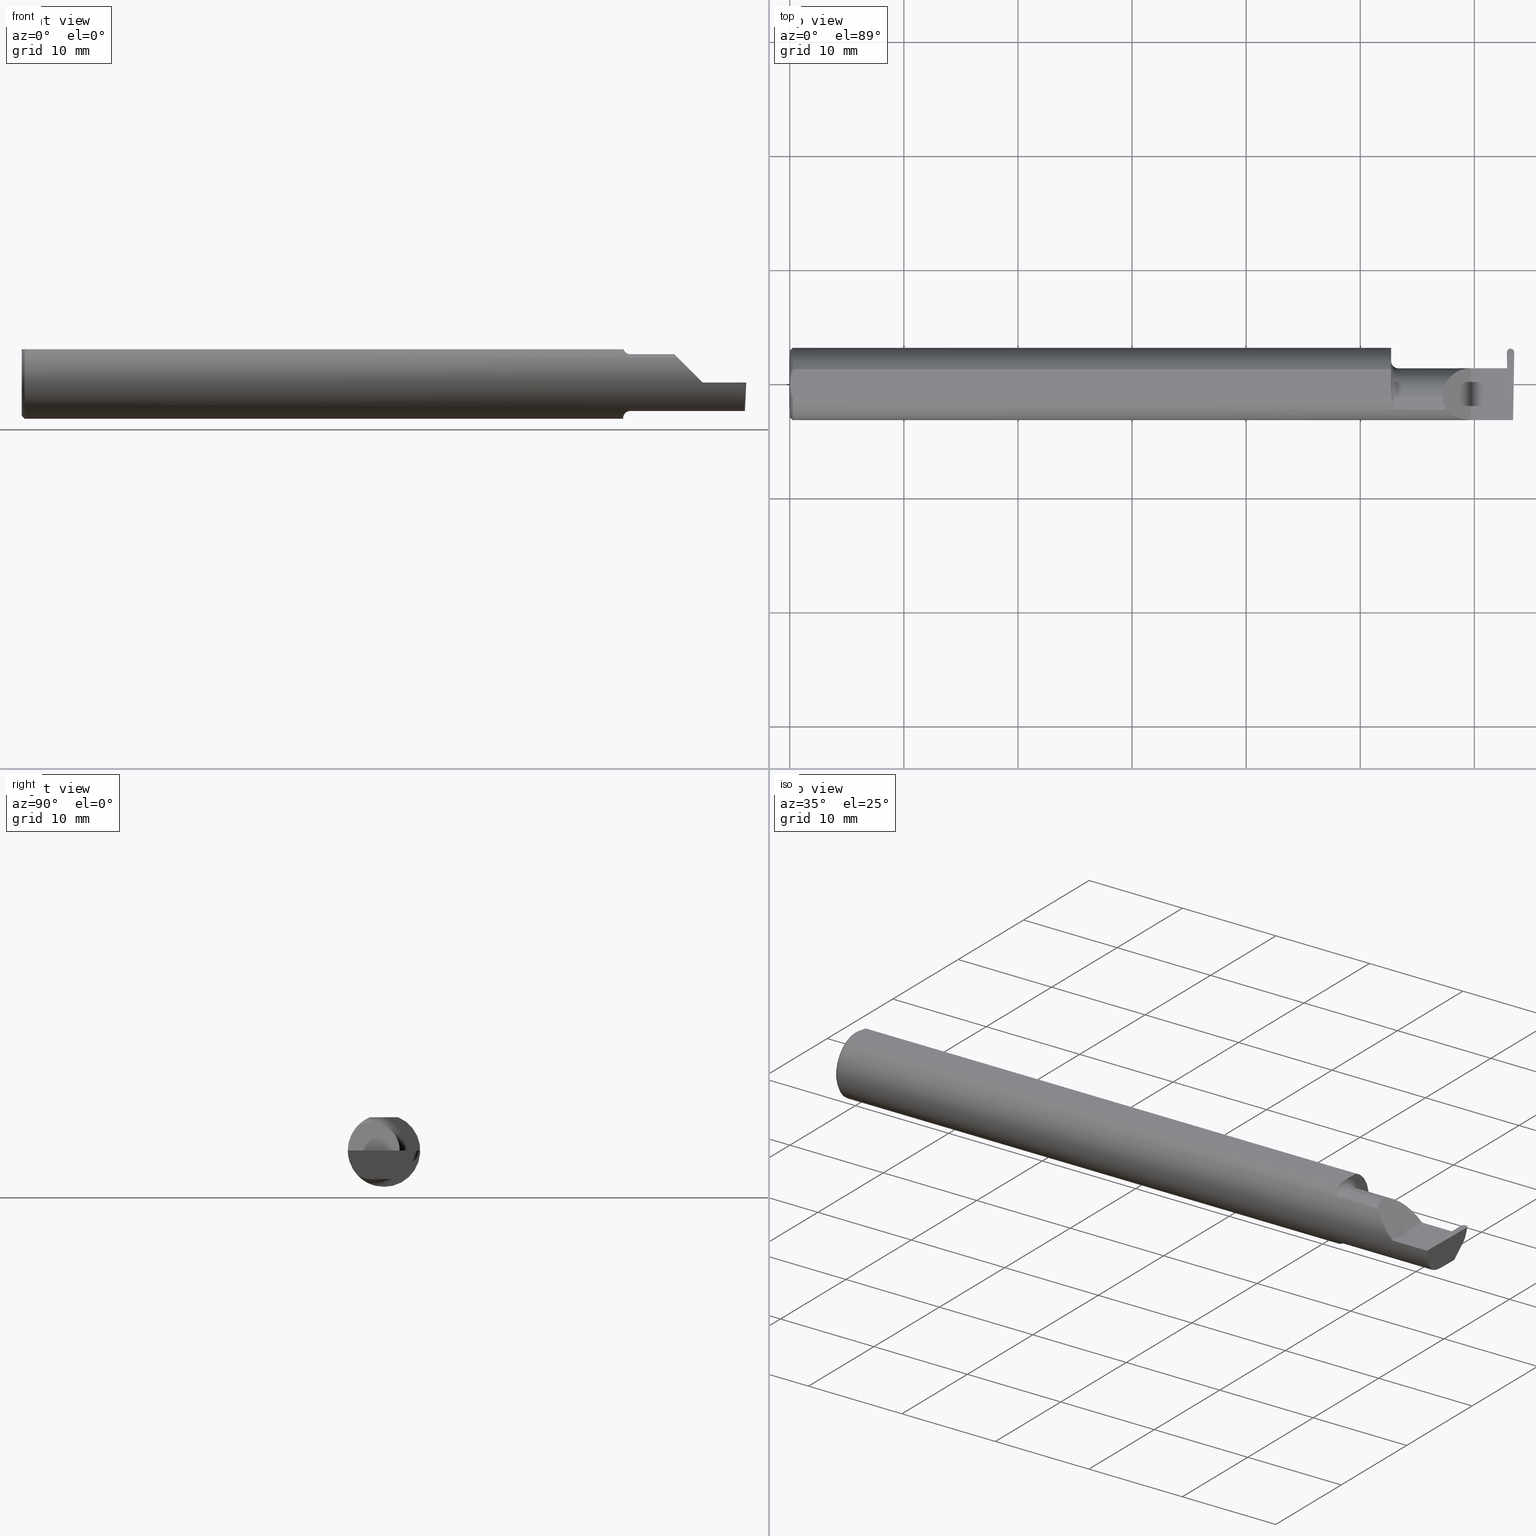
[diagram: canonical four-view strip — front | top / right | iso, engineering-drawing reading convention]
A machine part, canonical four-view strip (front | top / right | iso — engineering-drawing reading convention). The complete STEP part file that produces these views, byte-faithful:
ISO-10303-21;
HEADER;
FILE_DESCRIPTION (( 'STEP AP203' ),
    '1' );
FILE_NAME ('221927-GFR025Q-6.STEP',
    '2024-06-17T19:22:07',
    ( '' ),
    ( '' ),
    'SwSTEP 2.0',
    'SolidWorks 2022',
    '' );
FILE_SCHEMA (( 'CONFIG_CONTROL_DESIGN' ));
ENDSEC;

DATA;
#1 = AXIS2_PLACEMENT_3D ( 'NONE', #39, #528, #786 ) ;
#2 = ORIENTED_EDGE ( 'NONE', *, *, #768, .T. ) ;
#3 = DIRECTION ( 'NONE',  ( 0.000000000000000000, 0.000000000000000000, 1.000000000000000000 ) ) ;
#4 = DIRECTION ( 'NONE',  ( 0.000000000000000000, 0.000000000000000000, 1.000000000000000000 ) ) ;
#5 = ADVANCED_FACE ( 'NONE', ( #409 ), #25, .F. ) ;
#6 = VERTEX_POINT ( 'NONE', #773 ) ;
#7 = CARTESIAN_POINT ( 'NONE',  ( 2.075000000000000178, -0.04400000000000004602, 0.000000000000000000 ) ) ;
#8 = DIRECTION ( 'NONE',  ( -1.000000000000000000, -0.000000000000000000, -0.000000000000000000 ) ) ;
#9 = MANIFOLD_SOLID_BREP ( 'Radii', #762 ) ;
#10 = ORIENTED_EDGE ( 'NONE', *, *, #672, .F. ) ;
#11 = PLANE ( 'NONE',  #303 ) ;
#12 = PLANE ( 'NONE',  #239 ) ;
#13 = VECTOR ( 'NONE', #740, 39.37007874015748854 ) ;
#14 = ORIENTED_EDGE ( 'NONE', *, *, #236, .F. ) ;
#15 = VECTOR ( 'NONE', #617, 39.37007874015748143 ) ;
#16 = EDGE_CURVE ( 'NONE', #566, #71, #200, .T. ) ;
#17 = CARTESIAN_POINT ( 'NONE',  ( 2.100000000000000089, -0.04400000000000004602, 0.1230000000000000121 ) ) ;
#18 = ORIENTED_EDGE ( 'NONE', *, *, #794, .F. ) ;
#19 = CARTESIAN_POINT ( 'NONE',  ( 2.251999999999998892, -0.06028551311893200898, 0.09800000000000005929 ) ) ;
#20 = EDGE_CURVE ( 'NONE', #172, #434, #565, .T. ) ;
#21 = FACE_OUTER_BOUND ( 'NONE', #805, .T. ) ;
#22 = CARTESIAN_POINT ( 'NONE',  ( 2.076314561435346207, -0.03672135622230198598, 0.1149999999999999356 ) ) ;
#23 = DIRECTION ( 'NONE',  ( 0.000000000000000000, 0.000000000000000000, -1.000000000000000000 ) ) ;
#24 = DIRECTION ( 'NONE',  ( -1.000000000000000000, -0.000000000000000000, -0.000000000000000000 ) ) ;
#25 = PLANE ( 'NONE',  #109 ) ;
#26 = AXIS2_PLACEMENT_3D ( 'NONE', #425, #583, #30 ) ;
#27 = ORIENTED_EDGE ( 'NONE', *, *, #598, .T. ) ;
#28 = PLANE ( 'NONE',  #722 ) ;
#29 = VECTOR ( 'NONE', #385, 39.37007874015748143 ) ;
#30 = DIRECTION ( 'NONE',  ( 0.000000000000000000, 0.000000000000000000, 1.000000000000000000 ) ) ;
#31 = ADVANCED_FACE ( 'NONE', ( #673 ), #606, .F. ) ;
#32 = ORIENTED_EDGE ( 'NONE', *, *, #248, .F. ) ;
#33 = APPROVAL_ROLE ( '' ) ;
#34 = CARTESIAN_POINT ( 'NONE',  ( 2.479038067985627869, -0.04423967289024229727, -0.09800000000000001765 ) ) ;
#35 = ORIENTED_EDGE ( 'NONE', *, *, #556, .F. ) ;
#36 = CARTESIAN_POINT ( 'NONE',  ( 2.091446811421614704, -0.08721672169480992887, 0.08955973280240364653 ) ) ;
#37 = VERTEX_POINT ( 'NONE', #112 ) ;
#38 = PERSON_AND_ORGANIZATION_ROLE ( 'classification_officer' ) ;
#39 = CARTESIAN_POINT ( 'NONE',  ( -3.937007874019685528E-05, 0.1137361372810480054, -0.02400000000000000050 ) ) ;
#40 = EDGE_CURVE ( 'NONE', #558, #119, #283, .T. ) ;
#41 = CIRCLE ( 'NONE', #342, 0.02499999999999995628 ) ;
#42 = ORIENTED_EDGE ( 'NONE', *, *, #382, .T. ) ;
#43 = APPROVAL_STATUS ( 'not_yet_approved' ) ;
#44 = CARTESIAN_POINT ( 'NONE',  ( 2.076290282237983398, -0.04815824740011447752, 0.1149999999999999356 ) ) ;
#45 = DIRECTION ( 'NONE',  ( 1.000000000000000000, 0.000000000000000000, 0.000000000000000000 ) ) ;
#46 = VERTEX_POINT ( 'NONE', #710 ) ;
#47 = LINE ( 'NONE', #796, #509 ) ;
#48 = LINE ( 'NONE', #282, #238 ) ;
#49 = ORIENTED_EDGE ( 'NONE', *, *, #204, .F. ) ;
#50 = CARTESIAN_POINT ( 'NONE',  ( 2.097250989814109179, -0.09042045454545435956, -0.08630840862739519448 ) ) ;
#51 = CONICAL_SURFACE ( 'NONE', #443, 0.1149999999999997274, 0.7853981633974407295 ) ;
#52 = CARTESIAN_POINT ( 'NONE',  ( 1.541666659510484467E-16, -0.008419750986449443114, 0.1149999999999999356 ) ) ;
#53 = AXIS2_PLACEMENT_3D ( 'NONE', #186, #260, #134 ) ;
#54 = APPROVAL_PERSON_ORGANIZATION ( #718, #332, #108 ) ;
#55 = EDGE_CURVE ( 'NONE', #434, #644, #275, .T. ) ;
#56 = ORIENTED_EDGE ( 'NONE', *, *, #593, .T. ) ;
#57 = CARTESIAN_POINT ( 'NONE',  ( 0.01000000000000042348, 0.04898979485566374442, 0.1149999999999999217 ) ) ;
#58 = DIRECTION ( 'NONE',  ( 0.000000000000000000, 0.000000000000000000, 1.000000000000000000 ) ) ;
#59 = ORIENTED_EDGE ( 'NONE', *, *, #768, .F. ) ;
#60 = CARTESIAN_POINT ( 'NONE',  ( 2.469251112866224673, 0.05399999999999999245, 0.000000000000000000 ) ) ;
#61 = LINE ( 'NONE', #550, #613 ) ;
#62 = ORIENTED_EDGE ( 'NONE', *, *, #296, .F. ) ;
#63 = B_SPLINE_CURVE_WITH_KNOTS ( 'NONE', 3,
 ( #671, #44, #298, #361, #486, #719 ),
 .UNSPECIFIED., .F., .F.,
 ( 4, 2, 4 ),
 ( 0.009319464280391123040, 0.009382478399794849655, 0.009445492519198574535 ),
 .UNSPECIFIED. ) ;
#64 = CARTESIAN_POINT ( 'NONE',  ( 2.076314561435346207, -0.04400000000000004602, 0.1149999999999999217 ) ) ;
#65 = DIRECTION ( 'NONE',  ( 0.000000000000000000, 0.000000000000000000, 1.000000000000000000 ) ) ;
#66 = APPROVAL_PERSON_ORGANIZATION ( #478, #252, #538 ) ;
#67 = ORIENTED_EDGE ( 'NONE', *, *, #672, .T. ) ;
#68 =( BOUNDED_CURVE ( )  B_SPLINE_CURVE ( 3, ( #712, #215, #516, #716 ),
 .UNSPECIFIED., .F., .T. ) 
 B_SPLINE_CURVE_WITH_KNOTS ( ( 4, 4 ),
 ( 0.3451966888489940710, 1.107331509589511098 ),
 .UNSPECIFIED. ) 
 CURVE ( )  GEOMETRIC_REPRESENTATION_ITEM ( )  RATIONAL_B_SPLINE_CURVE ( ( 1.000000000000000000, 0.9521787881681383903, 0.9521787881681383903, 1.000000000000000000 ) ) 
 REPRESENTATION_ITEM ( '' )  );
#69 = CARTESIAN_POINT ( 'NONE',  ( 2.498159429761094508, 0.09306448537118866549, -0.04467165190985956935 ) ) ;
#70 = FACE_OUTER_BOUND ( 'NONE', #730, .T. ) ;
#71 = VERTEX_POINT ( 'NONE', #295 ) ;
#72 = FACE_OUTER_BOUND ( 'NONE', #237, .T. ) ;
#73 = CARTESIAN_POINT ( 'NONE',  ( 2.100000000000000089, -0.04400000000000004602, 0.000000000000000000 ) ) ;
#74 = ORIENTED_EDGE ( 'NONE', *, *, #104, .T. ) ;
#75 = CARTESIAN_POINT ( 'NONE',  ( 0.000000000000000000, 3.414809992080329023E-17, 0.1149999999999999217 ) ) ;
#76 = DIRECTION ( 'NONE',  ( 1.000000000000000000, -0.000000000000000000, -0.000000000000000000 ) ) ;
#77 = APPROVAL ( #161, 'UNSPECIFIED' ) ;
#78 = AXIS2_PLACEMENT_3D ( 'NONE', #184, #755, #436 ) ;
#79 = ORIENTED_EDGE ( 'NONE', *, *, #118, .F. ) ;
#80 = VECTOR ( 'NONE', #621, 39.37007874015748854 ) ;
#81 = EDGE_CURVE ( 'NONE', #725, #46, #90, .T. ) ;
#82 = LINE ( 'NONE', #705, #255 ) ;
#83 = DIRECTION ( 'NONE',  ( -1.000000000000000000, -0.000000000000000000, -0.000000000000000000 ) ) ;
#84 = EDGE_LOOP ( 'NONE', ( #62, #101, #610, #14, #268 ) ) ;
#85 = CARTESIAN_POINT ( 'NONE',  ( 2.487399542938343089, 0.1219999999999999835, 0.000000000000000000 ) ) ;
#86 = CARTESIAN_POINT ( 'NONE',  ( 2.478521344711220209, 0.05097006188126038118, -0.08676607539978835326 ) ) ;
#87 = DIRECTION ( 'NONE',  ( -0.9992386149554827179, 0.01744177490282529386, 0.03489949670250104552 ) ) ;
#88 = ORIENTED_EDGE ( 'NONE', *, *, #593, .F. ) ;
#89 = LINE ( 'NONE', #580, #29 ) ;
#90 =( BOUNDED_CURVE ( )  B_SPLINE_CURVE ( 3, ( #802, #398, #540, #362 ),
 .UNSPECIFIED., .F., .T. ) 
 B_SPLINE_CURVE_WITH_KNOTS ( ( 4, 4 ),
 ( 3.176499238629679756, 4.677482395344804367 ),
 .UNSPECIFIED. ) 
 CURVE ( )  GEOMETRIC_REPRESENTATION_ITEM ( )  RATIONAL_B_SPLINE_CURVE ( ( 1.000000000000000000, 0.8209024677461134178, 0.8209024677461134178, 1.000000000000000000 ) ) 
 REPRESENTATION_ITEM ( '' )  );
#91 = CARTESIAN_POINT ( 'NONE',  ( 2.498159429761094508, 0.09306448537118866549, -0.04467165190985956935 ) ) ;
#92 = EDGE_CURVE ( 'NONE', #594, #480, #797, .T. ) ;
#93 = DIRECTION ( 'NONE',  ( -0.01745240643727864055, -0.9998476951563912696, 0.000000000000000000 ) ) ;
#94 = CC_DESIGN_SECURITY_CLASSIFICATION ( #600, ( #267 ) ) ;
#95 = ORIENTED_EDGE ( 'NONE', *, *, #16, .T. ) ;
#96 = DIRECTION ( 'NONE',  ( 1.000000000000000000, 0.000000000000000000, 0.000000000000000000 ) ) ;
#97 = AXIS2_PLACEMENT_3D ( 'NONE', #222, #592, #475 ) ;
#98 = PERSON ( 'UNSPECIFIED', 'UNSPECIFIED', 'UNSPECIFIED', ('UNSPECIFIED'), ('UNSPECIFIED'), ('UNSPECIFIED') ) ;
#99 = AXIS2_PLACEMENT_3D ( 'NONE', #469, #419, #96 ) ;
#100 = CARTESIAN_POINT ( 'NONE',  ( 2.085996102358258053, -0.08116363444210958344, 0.09515685373890780951 ) ) ;
#101 = ORIENTED_EDGE ( 'NONE', *, *, #707, .F. ) ;
#102 = PERSON_AND_ORGANIZATION ( #98, #410 ) ;
#103 = FACE_OUTER_BOUND ( 'NONE', #746, .T. ) ;
#104 = EDGE_CURVE ( 'NONE', #360, #312, #559, .T. ) ;
#105 = ORIENTED_EDGE ( 'NONE', *, *, #16, .F. ) ;
#106 = PERSON_AND_ORGANIZATION_ROLE ( 'design_owner' ) ;
#107 = PLANE ( 'NONE',  #696 ) ;
#108 = APPROVAL_ROLE ( '' ) ;
#109 = AXIS2_PLACEMENT_3D ( 'NONE', #163, #666, #220 ) ;
#110 = DIRECTION ( 'NONE',  ( 0.000000000000000000, -0.03489949670250104552, -0.9993908270190957621 ) ) ;
#111 = VECTOR ( 'NONE', #611, 39.37007874015748143 ) ;
#112 = CARTESIAN_POINT ( 'NONE',  ( 0.000000000000000000, 0.000000000000000000, -0.1149999999999997274 ) ) ;
#113 = ORIENTED_EDGE ( 'NONE', *, *, #263, .T. ) ;
#114 = CARTESIAN_POINT ( 'NONE',  ( 2.493904409643075581, -0.04400000000000004602, -0.09800000000000001765 ) ) ;
#115 = CARTESIAN_POINT ( 'NONE',  ( 2.075000000000000178, 0.000000000000000000, 0.000000000000000000 ) ) ;
#116 = ORIENTED_EDGE ( 'NONE', *, *, #598, .F. ) ;
#117 = CARTESIAN_POINT ( 'NONE',  ( 2.078809610961340315, -0.06315583524588902486, -0.1079992965090798424 ) ) ;
#118 = EDGE_CURVE ( 'NONE', #541, #571, #775, .T. ) ;
#119 = VERTEX_POINT ( 'NONE', #643 ) ;
#120 = CARTESIAN_POINT ( 'NONE',  ( 2.500126563608119135, 0.1163773611807860930, -1.865347047243944322E-17 ) ) ;
#121 = AXIS2_PLACEMENT_3D ( 'NONE', #749, #139, #65 ) ;
#122 = CARTESIAN_POINT ( 'NONE',  ( 0.01000000000000042348, -0.04898979485566374442, 0.1149999999999999217 ) ) ;
#123 = CIRCLE ( 'NONE', #431, 0.09800000000000005929 ) ;
#124 = ORIENTED_EDGE ( 'NONE', *, *, #632, .T. ) ;
#125 = PRODUCT ( '221927-GFR025Q-6', '221927-GFR025Q-6', '', ( #591 ) ) ;
#126 = FACE_OUTER_BOUND ( 'NONE', #791, .T. ) ;
#127 = DIRECTION ( 'NONE',  ( -0.03867711768363093355, -0.3253245514560478280, -0.9448111011136607340 ) ) ;
#128 = ORIENTED_EDGE ( 'NONE', *, *, #811, .F. ) ;
#129 =( BOUNDED_CURVE ( )  B_SPLINE_CURVE ( 3, ( #440, #812, #627, #494 ),
 .UNSPECIFIED., .F., .F. ) 
 B_SPLINE_CURVE_WITH_KNOTS ( ( 4, 4 ),
 ( 4.726121454046343651, 6.237505860059813223 ),
 .UNSPECIFIED. ) 
 CURVE ( )  GEOMETRIC_REPRESENTATION_ITEM ( )  RATIONAL_B_SPLINE_CURVE ( ( 1.000000000000000000, 0.8185313399132094769, 0.8185313399132094769, 1.000000000000000000 ) ) 
 REPRESENTATION_ITEM ( '' )  );
#130 = EDGE_CURVE ( 'NONE', #677, #301, #216, .T. ) ;
#131 = DIRECTION ( 'NONE',  ( 1.000000000000000000, 0.000000000000000000, 0.000000000000000000 ) ) ;
#132 = CARTESIAN_POINT ( 'NONE',  ( 0.000000000000000000, 0.000000000000000000, 0.000000000000000000 ) ) ;
#133 = ORIENTED_EDGE ( 'NONE', *, *, #347, .T. ) ;
#134 = DIRECTION ( 'NONE',  ( 0.000000000000000000, -0.3255681544571570885, -0.9455185755993166241 ) ) ;
#135 = CYLINDRICAL_SURFACE ( 'NONE', #78, 0.09800000000000005929 ) ;
#136 = AXIS2_PLACEMENT_3D ( 'NONE', #324, #219, #211 ) ;
#137 = VECTOR ( 'NONE', #708, 39.37007874015748143 ) ;
#138 = ORIENTED_EDGE ( 'NONE', *, *, #366, .T. ) ;
#139 = DIRECTION ( 'NONE',  ( -1.000000000000000000, -0.000000000000000000, -0.000000000000000000 ) ) ;
#140 = ADVANCED_FACE ( 'NONE', ( #177 ), #589, .F. ) ;
#141 = ORIENTED_EDGE ( 'NONE', *, *, #382, .F. ) ;
#142 = DIRECTION ( 'NONE',  ( -1.000000000000000000, -0.000000000000000000, -0.000000000000000000 ) ) ;
#143 = PRODUCT_DEFINITION ( 'UNKNOWN', '', #267, #670 ) ;
#144 = DIRECTION ( 'NONE',  ( 0.000000000000000000, 0.9455185755993165131, -0.3255681544571575325 ) ) ;
#145 = EDGE_CURVE ( 'NONE', #221, #434, #48, .T. ) ;
#146 = ORIENTED_EDGE ( 'NONE', *, *, #81, .F. ) ;
#147 = LINE ( 'NONE', #634, #370 ) ;
#148 = LINE ( 'NONE', #330, #602 ) ;
#149 = VECTOR ( 'NONE', #45, 39.37007874015748143 ) ;
#150 = ORIENTED_EDGE ( 'NONE', *, *, #508, .F. ) ;
#151 = AXIS2_PLACEMENT_3D ( 'NONE', #689, #378, #23 ) ;
#152 = LINE ( 'NONE', #337, #137 ) ;
#153 = CARTESIAN_POINT ( 'NONE',  ( 2.487076277061657237, 0.1219999999999999835, 0.000000000000000000 ) ) ;
#154 = DIRECTION ( 'NONE',  ( 1.000000000000000000, 0.000000000000000000, 0.000000000000000000 ) ) ;
#155 =( BOUNDED_CURVE ( )  B_SPLINE_CURVE ( 3, ( #375, #120, #423, #306 ),
 .UNSPECIFIED., .F., .F. ) 
 B_SPLINE_CURVE_WITH_KNOTS ( ( 4, 4 ),
 ( 1.677524580234104556, 3.253450286950886117 ),
 .UNSPECIFIED. ) 
 CURVE ( )  GEOMETRIC_REPRESENTATION_ITEM ( )  RATIONAL_B_SPLINE_CURVE ( ( 1.000000000000000000, 0.8035272986452568489, 0.8035272986452568489, 1.000000000000000000 ) ) 
 REPRESENTATION_ITEM ( '' )  );
#156 = VERTEX_POINT ( 'NONE', #543 ) ;
#157 = DIRECTION ( 'NONE',  ( 0.000000000000000000, 0.000000000000000000, -1.000000000000000000 ) ) ;
#158 = EDGE_CURVE ( 'NONE', #426, #639, #782, .T. ) ;
#159 = CARTESIAN_POINT ( 'NONE',  ( 2.474487695872377380, 0.1084461686550174248, 0.000000000000000000 ) ) ;
#160 = DIRECTION ( 'NONE',  ( 0.03490480639812536257, 0.000000000000000000, 0.9993906415863165194 ) ) ;
#161 = APPROVAL_STATUS ( 'not_yet_approved' ) ;
#162 = CARTESIAN_POINT ( 'NONE',  ( 2.478933986667482436, 0.03973613728104883475, -0.09800000000000000377 ) ) ;
#163 = CARTESIAN_POINT ( 'NONE',  ( 2.500000000000000000, -0.2500000000000000555, 0.000000000000000000 ) ) ;
#164 = DATE_AND_TIME ( #405, #165 ) ;
#165 = LOCAL_TIME ( 12, 22, 7.000000000000000000, #352 ) ;
#166 = LINE ( 'NONE', #482, #472 ) ;
#167 = ADVANCED_FACE ( 'NONE', ( #181 ), #694, .F. ) ;
#168 = VERTEX_POINT ( 'NONE', #700 ) ;
#169 =( NAMED_UNIT ( * ) PLANE_ANGLE_UNIT ( ) SI_UNIT ( $, .RADIAN. ) );
#170 = DIRECTION ( 'NONE',  ( -0.03549161113179494231, 0.03487750912278164694, 0.9987611851171729338 ) ) ;
#171 = ADVANCED_FACE ( 'NONE', ( #315 ), #612, .T. ) ;
#172 = VERTEX_POINT ( 'NONE', #383 ) ;
#173 = CARTESIAN_POINT ( 'NONE',  ( 2.475438057281342807, 0.05399999999999999245, 0.000000000000000000 ) ) ;
#174 = ORIENTED_EDGE ( 'NONE', *, *, #358, .F. ) ;
#175 = DATE_AND_TIME ( #232, #801 ) ;
#176 = FACE_OUTER_BOUND ( 'NONE', #262, .T. ) ;
#177 = FACE_OUTER_BOUND ( 'NONE', #756, .T. ) ;
#178 =( BOUNDED_CURVE ( )  B_SPLINE_CURVE ( 3, ( #685, #195, #491, #254 ),
 .UNSPECIFIED., .F., .F. ) 
 B_SPLINE_CURVE_WITH_KNOTS ( ( 4, 4 ),
 ( 4.712388980384689674, 5.474523801125206646 ),
 .UNSPECIFIED. ) 
 CURVE ( )  GEOMETRIC_REPRESENTATION_ITEM ( )  RATIONAL_B_SPLINE_CURVE ( ( 1.000000000000000000, 0.9521787881681383903, 0.9521787881681383903, 1.000000000000000000 ) ) 
 REPRESENTATION_ITEM ( '' )  );
#179 = ORIENTED_EDGE ( 'NONE', *, *, #40, .F. ) ;
#180 = CARTESIAN_POINT ( 'NONE',  ( 2.083239374200247518, -0.07597265459956462075, -0.09939534496909263606 ) ) ;
#181 = FACE_OUTER_BOUND ( 'NONE', #798, .T. ) ;
#182 = ORIENTED_EDGE ( 'NONE', *, *, #750, .T. ) ;
#183 =( BOUNDED_CURVE ( )  B_SPLINE_CURVE ( 3, ( #799, #536, #539, #415 ),
 .UNSPECIFIED., .F., .F. ) 
 B_SPLINE_CURVE_WITH_KNOTS ( ( 4, 4 ),
 ( 1.570796326794922093, 1.635337627498223423 ),
 .UNSPECIFIED. ) 
 CURVE ( )  GEOMETRIC_REPRESENTATION_ITEM ( )  RATIONAL_B_SPLINE_CURVE ( ( 1.000000000000000000, 0.9996528984993393596, 0.9996528984993393596, 1.000000000000000000 ) ) 
 REPRESENTATION_ITEM ( '' )  );
#184 = CARTESIAN_POINT ( 'NONE',  ( 2.075000000000000178, -0.04400000000000004602, 0.000000000000000000 ) ) ;
#185 = ORIENTED_EDGE ( 'NONE', *, *, #721, .F. ) ;
#186 = CARTESIAN_POINT ( 'NONE',  ( -3.937007874019685528E-05, 0.1219999999999999835, 0.000000000000000000 ) ) ;
#187 = CYLINDRICAL_SURFACE ( 'NONE', #266, 0.1250000000000000000 ) ;
#188 = VECTOR ( 'NONE', #754, 39.37007874015748854 ) ;
#189 = ORIENTED_EDGE ( 'NONE', *, *, #546, .F. ) ;
#190 = DIRECTION ( 'NONE',  ( -1.000000000000000000, -0.000000000000000000, -0.000000000000000000 ) ) ;
#191 = CARTESIAN_POINT ( 'NONE',  ( 0.000000000000000000, 3.414809992080329023E-17, 0.1149999999999999217 ) ) ;
#192 = PRODUCT_RELATED_PRODUCT_CATEGORY ( 'detail', '', ( #125 ) ) ;
#193 = EDGE_LOOP ( 'NONE', ( #492, #738, #576, #505, #394, #695, #35, #336, #256, #484, #615, #619, #271 ) ) ;
#194 = CARTESIAN_POINT ( 'NONE',  ( 2.085190181894029049, -0.07991573988362404846, -0.09622915934337322730 ) ) ;
#195 = CARTESIAN_POINT ( 'NONE',  ( 2.317450832343515899, -0.1250000000000000000, 0.03254916765648416949 ) ) ;
#196 = ORIENTED_EDGE ( 'NONE', *, *, #609, .F. ) ;
#197 = LINE ( 'NONE', #460, #393 ) ;
#198 = ADVANCED_FACE ( 'NONE', ( #376 ), #51, .T. ) ;
#199 = DIRECTION ( 'NONE',  ( -0.03867711768362880331, 0.3253245514560478280, 0.9448111011136606230 ) ) ;
#200 = CIRCLE ( 'NONE', #26, 0.02499999999999995628 ) ;
#201 = VECTOR ( 'NONE', #329, 39.37007874015748854 ) ;
#202 = ORIENTED_EDGE ( 'NONE', *, *, #347, .F. ) ;
#203 = CARTESIAN_POINT ( 'NONE',  ( 2.075730677800976753, -0.04400000000000003908, -0.1169999999999999929 ) ) ;
#204 = EDGE_CURVE ( 'NONE', #551, #71, #339, .T. ) ;
#205 = CARTESIAN_POINT ( 'NONE',  ( 2.493502479154699358, -0.09042045454545437344, -0.08630840862739515285 ) ) ;
#206 = ORIENTED_EDGE ( 'NONE', *, *, #785, .T. ) ;
#207 = CARTESIAN_POINT ( 'NONE',  ( 2.255977500337024377, -0.07607783494366275601, 0.09402249966297451800 ) ) ;
#208 = LINE ( 'NONE', #635, #790 ) ;
#209 = VERTEX_POINT ( 'NONE', #307 ) ;
#210 = CARTESIAN_POINT ( 'NONE',  ( 2.075234743326752174, -0.03866586649758528560, -0.1190059989239850985 ) ) ;
#211 = DIRECTION ( 'NONE',  ( 0.000000000000000000, -0.9455185755993165131, 0.3255681544571575325 ) ) ;
#212 = AXIS2_PLACEMENT_3D ( 'NONE', #777, #154, #734 ) ;
#213 = CARTESIAN_POINT ( 'NONE',  ( 2.292592929112562405, 0.05399999999999999245, 0.05740707088743673275 ) ) ;
#214 = CARTESIAN_POINT ( 'NONE',  ( 2.672413070268786939, -0.04400000000000004602, -0.09800000000000001765 ) ) ;
#215 = CARTESIAN_POINT ( 'NONE',  ( 2.493932522392288131, -0.1128945894460738203, -0.06276352435079114722 ) ) ;
#216 = LINE ( 'NONE', #335, #586 ) ;
#217 = ORIENTED_EDGE ( 'NONE', *, *, #476, .F. ) ;
#218 = CALENDAR_DATE ( 2024, 17, 6 ) ;
#219 = DIRECTION ( 'NONE',  ( -0.03867711768362881719, 0.3253245514560478835, 0.9448111011136608450 ) ) ;
#220 = DIRECTION ( 'NONE',  ( -1.000000000000000000, 0.000000000000000000, 1.224646799147352468E-16 ) ) ;
#221 = VERTEX_POINT ( 'NONE', #690 ) ;
#222 = CARTESIAN_POINT ( 'NONE',  ( 0.000000000000000000, 0.000000000000000000, 0.000000000000000000 ) ) ;
#223 = EDGE_CURVE ( 'NONE', #541, #224, #513, .T. ) ;
#224 = VERTEX_POINT ( 'NONE', #191 ) ;
#225 = PERSON_AND_ORGANIZATION_ROLE ( 'creator' ) ;
#226 = AXIS2_PLACEMENT_3D ( 'NONE', #789, #724, #231 ) ;
#227 = CARTESIAN_POINT ( 'NONE',  ( 0.01000000000000042348, -0.04898979485566374442, 0.1149999999999999217 ) ) ;
#228 = ADVANCED_FACE ( 'NONE', ( #304 ), #187, .T. ) ;
#229 = EDGE_LOOP ( 'NONE', ( #133, #688, #325, #714 ) ) ;
#230 = PERSON_AND_ORGANIZATION_ROLE ( 'design_supplier' ) ;
#231 = DIRECTION ( 'NONE',  ( 0.000000000000000000, 0.000000000000000000, 1.000000000000000000 ) ) ;
#232 = CALENDAR_DATE ( 2024, 17, 6 ) ;
#233 = DIRECTION ( 'NONE',  ( -1.000000000000000000, -0.000000000000000000, -0.000000000000000000 ) ) ;
#234 = CARTESIAN_POINT ( 'NONE',  ( 2.350000000000000089, 0.05399999999999999245, 5.204748896376245769E-17 ) ) ;
#235 =( BOUNDED_CURVE ( )  B_SPLINE_CURVE ( 3, ( #153, #525, #270, #159 ),
 .UNSPECIFIED., .F., .F. ) 
 B_SPLINE_CURVE_WITH_KNOTS ( ( 4, 4 ),
 ( 6.171327673818499449, 7.747253380535275014 ),
 .UNSPECIFIED. ) 
 CURVE ( )  GEOMETRIC_REPRESENTATION_ITEM ( )  RATIONAL_B_SPLINE_CURVE ( ( 1.000000000000000000, 0.8035272986452582922, 0.8035272986452582922, 1.000000000000000000 ) ) 
 REPRESENTATION_ITEM ( '' )  );
#236 = EDGE_CURVE ( 'NONE', #6, #422, #61, .T. ) ;
#237 = EDGE_LOOP ( 'NONE', ( #367, #554, #590, #242, #387 ) ) ;
#238 = VECTOR ( 'NONE', #526, 39.37007874015748143 ) ;
#239 = AXIS2_PLACEMENT_3D ( 'NONE', #709, #273, #765 ) ;
#240 = CARTESIAN_POINT ( 'NONE',  ( 2.499988124127622946, 0.1084461686550173415, 0.000000000000000000 ) ) ;
#241 = LOCAL_TIME ( 12, 22, 7.000000000000000000, #412 ) ;
#242 = ORIENTED_EDGE ( 'NONE', *, *, #717, .T. ) ;
#243 = CARTESIAN_POINT ( 'NONE',  ( 2.076893175330811303, -0.05388688644707111119, -0.1129101901561701121 ) ) ;
#244 = DIRECTION ( 'NONE',  ( 0.000000000000000000, 0.000000000000000000, -1.000000000000000000 ) ) ;
#245 = ORIENTED_EDGE ( 'NONE', *, *, #395, .T. ) ;
#246 = SHAPE_DEFINITION_REPRESENTATION ( #813, #679 ) ;
#247 = CARTESIAN_POINT ( 'NONE',  ( 2.075730677800976753, -0.04400000000000003908, -0.1169999999999999929 ) ) ;
#248 = EDGE_CURVE ( 'NONE', #37, #224, #532, .T. ) ;
#249 = CARTESIAN_POINT ( 'NONE',  ( 2.075000000000000178, 0.04898979485566374442, 0.1149999999999999217 ) ) ;
#250 = ORIENTED_EDGE ( 'NONE', *, *, #515, .F. ) ;
#251 = CARTESIAN_POINT ( 'NONE',  ( 2.495818186131870231, 0.04836818798314927031, -0.08936794929789945718 ) ) ;
#252 = APPROVAL ( #43, 'UNSPECIFIED' ) ;
#253 = AXIS2_PLACEMENT_3D ( 'NONE', #463, #421, #608 ) ;
#254 = CARTESIAN_POINT ( 'NONE',  ( 2.263691591372603895, -0.09042045454545441507, 0.08630840862739512509 ) ) ;
#255 = VECTOR ( 'NONE', #447, 39.37007874015748854 ) ;
#256 = ORIENTED_EDGE ( 'NONE', *, *, #321, .T. ) ;
#257 = CARTESIAN_POINT ( 'NONE',  ( 2.100000000000000089, -0.04400000000000004602, 0.000000000000000000 ) ) ;
#258 = CARTESIAN_POINT ( 'NONE',  ( 0.000000000000000000, 0.000000000000000000, 0.000000000000000000 ) ) ;
#259 = ORIENTED_EDGE ( 'NONE', *, *, #490, .T. ) ;
#260 = DIRECTION ( 'NONE',  ( 0.000000000000000000, -0.9455185755993166241, 0.3255681544571570885 ) ) ;
#261 = DIRECTION ( 'NONE',  ( 0.000000000000000000, 0.000000000000000000, 1.000000000000000000 ) ) ;
#262 = EDGE_LOOP ( 'NONE', ( #250, #42, #305, #2 ) ) ;
#263 = EDGE_CURVE ( 'NONE', #422, #706, #758, .T. ) ;
#264 = DIRECTION ( 'NONE',  ( 0.03490480639812536257, 0.000000000000000000, -0.9993906415863165194 ) ) ;
#265 = DIRECTION ( 'NONE',  ( 0.000000000000000000, -1.000000000000000000, 0.000000000000000000 ) ) ;
#266 = AXIS2_PLACEMENT_3D ( 'NONE', #258, #553, #261 ) ;
#267 = PRODUCT_DEFINITION_FORMATION_WITH_SPECIFIED_SOURCE ( 'ANY', '', #125, .NOT_KNOWN. ) ;
#268 = ORIENTED_EDGE ( 'NONE', *, *, #466, .T. ) ;
#269 =( LENGTH_UNIT ( ) NAMED_UNIT ( * ) SI_UNIT ( $, .METRE. ) );
#270 = CARTESIAN_POINT ( 'NONE',  ( 2.474349256391881191, 0.1163773611807861486, 1.865347047243944014E-17 ) ) ;
#271 = ORIENTED_EDGE ( 'NONE', *, *, #632, .F. ) ;
#272 = DIRECTION ( 'NONE',  ( 0.03867711768362880331, -0.3253245514560478280, -0.9448111011136606230 ) ) ;
#273 = DIRECTION ( 'NONE',  ( 0.000000000000000000, 0.000000000000000000, 1.000000000000000000 ) ) ;
#274 = EDGE_CURVE ( 'NONE', #221, #209, #178, .T. ) ;
#275 = LINE ( 'NONE', #359, #149 ) ;
#276 = LINE ( 'NONE', #774, #344 ) ;
#277 = CYLINDRICAL_SURFACE ( 'NONE', #136, 0.01275000000000000092 ) ;
#278 = CARTESIAN_POINT ( 'NONE',  ( 2.251999999999998892, -0.04400000000000004602, 0.09800000000000005929 ) ) ;
#279 = ORIENTED_EDGE ( 'NONE', *, *, #391, .T. ) ;
#280 = CALENDAR_DATE ( 2024, 17, 6 ) ;
#281 = PLANE ( 'NONE',  #356 ) ;
#282 = CARTESIAN_POINT ( 'NONE',  ( 2.350000000000000089, -0.2500000000000000555, 1.836970198721028825E-17 ) ) ;
#283 = B_SPLINE_CURVE_WITH_KNOTS ( 'NONE', 3,
 ( #520, #22, #468, #459, #676, #648 ),
 .UNSPECIFIED., .F., .F.,
 ( 4, 2, 4 ),
 ( 0.009445492519198574535, 0.009997058688341168425, 0.01054862485748376232 ),
 .UNSPECIFIED. ) ;
#284 = ORIENTED_EDGE ( 'NONE', *, *, #620, .F. ) ;
#285 = PERSON_AND_ORGANIZATION ( #98, #410 ) ;
#286 = PLANE ( 'NONE',  #1 ) ;
#287 = CC_DESIGN_PERSON_AND_ORGANIZATION_ASSIGNMENT ( #784, #106, ( #125 ) ) ;
#288 = ORIENTED_EDGE ( 'NONE', *, *, #682, .T. ) ;
#289 = EDGE_CURVE ( 'NONE', #725, #71, #618, .T. ) ;
#290 = DIRECTION ( 'NONE',  ( 1.000000000000000000, 0.000000000000000000, 0.000000000000000000 ) ) ;
#291 = ORIENTED_EDGE ( 'NONE', *, *, #263, .F. ) ;
#292 =( CONVERSION_BASED_UNIT ( 'INCH', #669 ) LENGTH_UNIT ( ) NAMED_UNIT ( #779 ) );
#293 = CARTESIAN_POINT ( 'NONE',  ( 2.100000000000000089, -0.09042045454545434569, 0.08630840862739518060 ) ) ;
#294 = CARTESIAN_POINT ( 'NONE',  ( 2.100000000000000089, -0.04400000000000004602, 0.09800000000000005929 ) ) ;
#295 = CARTESIAN_POINT ( 'NONE',  ( 2.100000000000000089, -0.04400000000000003908, -0.09800000000000005929 ) ) ;
#296 = EDGE_CURVE ( 'NONE', #156, #766, #129, .T. ) ;
#297 = ORIENTED_EDGE ( 'NONE', *, *, #794, .T. ) ;
#298 = CARTESIAN_POINT ( 'NONE',  ( 2.076299368641396192, -0.04732662288298106201, 0.1149999999999999356 ) ) ;
#299 = CARTESIAN_POINT ( 'NONE',  ( 2.499998056271878877, 0.1090151808183310173, 0.000000000000000000 ) ) ;
#300 = CC_DESIGN_APPROVAL ( #77, ( #267 ) ) ;
#301 = VERTEX_POINT ( 'NONE', #693 ) ;
#302 = CIRCLE ( 'NONE', #226, 0.09800000000000005929 ) ;
#303 = AXIS2_PLACEMENT_3D ( 'NONE', #770, #396, #157 ) ;
#304 = FACE_OUTER_BOUND ( 'NONE', #193, .T. ) ;
#305 = ORIENTED_EDGE ( 'NONE', *, *, #476, .T. ) ;
#306 = CARTESIAN_POINT ( 'NONE',  ( 2.487399542938343089, 0.1219999999999999835, 0.000000000000000000 ) ) ;
#307 = CARTESIAN_POINT ( 'NONE',  ( 2.263691591372603895, -0.09042045454545441507, 0.08630840862739512509 ) ) ;
#308 = ORIENTED_EDGE ( 'NONE', *, *, #341, .F. ) ;
#309 = DIRECTION ( 'NONE',  ( -1.000000000000000000, -0.000000000000000000, -0.000000000000000000 ) ) ;
#310 = ADVANCED_FACE ( 'NONE', ( #70 ), #135, .T. ) ;
#311 = DIRECTION ( 'NONE',  ( 1.000000000000000000, -0.000000000000000000, -0.000000000000000000 ) ) ;
#312 = VERTEX_POINT ( 'NONE', #249 ) ;
#313 = PLANE ( 'NONE',  #53 ) ;
#314 = AXIS2_PLACEMENT_3D ( 'NONE', #115, #403, #365 ) ;
#315 = FACE_OUTER_BOUND ( 'NONE', #430, .T. ) ;
#316 = ORIENTED_EDGE ( 'NONE', *, *, #296, .T. ) ;
#317 = B_SPLINE_CURVE_WITH_KNOTS ( 'NONE', 3,
 ( #203, #210, #388, #514 ),
 .UNSPECIFIED., .F., .F.,
 ( 4, 4 ),
 ( 0.001645996930207816204, 0.002084692492981597353 ),
 .UNSPECIFIED. ) ;
#318 = LINE ( 'NONE', #552, #111 ) ;
#319 = ADVANCED_FACE ( 'NONE', ( #428 ), #320, .T. ) ;
#320 = CYLINDRICAL_SURFACE ( 'NONE', #751, 0.01275000000000000092 ) ;
#321 = EDGE_CURVE ( 'NONE', #571, #625, #788, .T. ) ;
#322 = ORIENTED_EDGE ( 'NONE', *, *, #92, .T. ) ;
#323 = CARTESIAN_POINT ( 'NONE',  ( 2.474480521353160878, 0.1085065156349823701, 0.0001752603556490770550 ) ) ;
#324 = CARTESIAN_POINT ( 'NONE',  ( 2.483355752434689645, 0.1412390592022552127, 0.09503659196759348116 ) ) ;
#325 = ORIENTED_EDGE ( 'NONE', *, *, #358, .T. ) ;
#326 = DIRECTION ( 'NONE',  ( 0.000000000000000000, 0.000000000000000000, -1.000000000000000000 ) ) ;
#327 = UNCERTAINTY_MEASURE_WITH_UNIT (LENGTH_MEASURE( 1.000000000000000082E-05 ), #292, 'distance_accuracy_value', 'NONE');
#328 = EDGE_LOOP ( 'NONE', ( #623, #316, #809, #656, #174, #182 ) ) ;
#329 = DIRECTION ( 'NONE',  ( -0.02596452850600435361, 0.7068683906002055650, 0.7068683906002134476 ) ) ;
#330 = CARTESIAN_POINT ( 'NONE',  ( 2.075000000000000178, -0.04400000000000004602, 0.09800000000000005929 ) ) ;
#331 = ORIENTED_EDGE ( 'NONE', *, *, #223, .F. ) ;
#332 = APPROVAL ( #604, 'UNSPECIFIED' ) ;
#333 = DIRECTION ( 'NONE',  ( 1.000000000000000000, 0.000000000000000000, -0.000000000000000000 ) ) ;
#334 = DIRECTION ( 'NONE',  ( -1.000000000000000000, -0.000000000000000000, -0.000000000000000000 ) ) ;
#335 = CARTESIAN_POINT ( 'NONE',  ( 2.493958780969530498, -0.04088506879356347545, -0.09800000000000001765 ) ) ;
#336 = ORIENTED_EDGE ( 'NONE', *, *, #118, .T. ) ;
#337 = CARTESIAN_POINT ( 'NONE',  ( 0.000000000000000000, 0.000000000000000000, -0.1149999999999997274 ) ) ;
#338 = DIRECTION ( 'NONE',  ( -0.7071067811865511255, 0.000000000000000000, 0.7071067811865439090 ) ) ;
#339 = CIRCLE ( 'NONE', #507, 0.09800000000000005929 ) ;
#340 = CC_DESIGN_APPROVAL ( #252, ( #600 ) ) ;
#341 = EDGE_CURVE ( 'NONE', #404, #446, #68, .T. ) ;
#342 = AXIS2_PLACEMENT_3D ( 'NONE', #17, #265, #326 ) ;
#343 = CARTESIAN_POINT ( 'NONE',  ( 2.499995298646839448, 0.1085065156349822868, 0.0001752603556491070331 ) ) ;
#344 = VECTOR ( 'NONE', #767, 39.37007874015748143 ) ;
#345 = PERSON_AND_ORGANIZATION ( #98, #410 ) ;
#346 = CARTESIAN_POINT ( 'NONE',  ( 2.095169762358927379, -0.08954173371313513263, 0.08723520050113869884 ) ) ;
#347 = EDGE_CURVE ( 'NONE', #301, #725, #467, .T. ) ;
#348 = ORIENTED_EDGE ( 'NONE', *, *, #609, .T. ) ;
#349 = CALENDAR_DATE ( 2024, 17, 6 ) ;
#350 = PLANE ( 'NONE',  #545 ) ;
#351 = ORIENTED_EDGE ( 'NONE', *, *, #498, .F. ) ;
#352 = COORDINATED_UNIVERSAL_TIME_OFFSET ( 8, 0, .BEHIND. ) ;
#353 = CARTESIAN_POINT ( 'NONE',  ( 2.079267307214532678, -0.06631395538259703126, 0.1063681193386738499 ) ) ;
#354 = ORIENTED_EDGE ( 'NONE', *, *, #641, .F. ) ;
#355 = COORDINATED_UNIVERSAL_TIME_OFFSET ( 8, 0, .BEHIND. ) ;
#356 = AXIS2_PLACEMENT_3D ( 'NONE', #457, #461, #338 ) ;
#357 = CARTESIAN_POINT ( 'NONE',  ( 2.100000000000000089, -0.09042045454545434569, 0.08630840862739518060 ) ) ;
#358 = EDGE_CURVE ( 'NONE', #517, #677, #208, .T. ) ;
#359 = CARTESIAN_POINT ( 'NONE',  ( 2.075000000000000178, 0.05399999999999999245, 5.204748896376245769E-17 ) ) ;
#360 = VERTEX_POINT ( 'NONE', #781 ) ;
#361 = CARTESIAN_POINT ( 'NONE',  ( 2.076311508822837215, -0.04566321385558330670, 0.1149999999999999217 ) ) ;
#362 = CARTESIAN_POINT ( 'NONE',  ( 2.475680983646864952, 0.05376127692546277259, -0.006836134426924195436 ) ) ;
#363 = ORIENTED_EDGE ( 'NONE', *, *, #641, .T. ) ;
#364 = CARTESIAN_POINT ( 'NONE',  ( 2.075000000000000178, -0.04400000000000004602, 0.000000000000000000 ) ) ;
#365 = DIRECTION ( 'NONE',  ( 0.000000000000000000, 0.000000000000000000, -1.000000000000000000 ) ) ;
#366 = EDGE_CURVE ( 'NONE', #558, #551, #41, .T. ) ;
#367 = ORIENTED_EDGE ( 'NONE', *, *, #158, .T. ) ;
#368 = AXIS2_PLACEMENT_3D ( 'NONE', #364, #439, #3 ) ;
#369 = DIRECTION ( 'NONE',  ( 0.000000000000000000, 0.000000000000000000, 1.000000000000000000 ) ) ;
#370 = VECTOR ( 'NONE', #645, 39.37007874015748143 ) ;
#371 = CARTESIAN_POINT ( 'NONE',  ( 2.100000000000000089, -0.04400000000000004602, 0.000000000000000000 ) ) ;
#372 = CC_DESIGN_DATE_AND_TIME_ASSIGNMENT ( #474, #465, ( #143 ) ) ;
#373 = ADVANCED_FACE ( 'NONE', ( #638 ), #277, .T. ) ;
#374 = VERTEX_POINT ( 'NONE', #86 ) ;
#375 = CARTESIAN_POINT ( 'NONE',  ( 2.499988124127622946, 0.1084461686550173415, 0.000000000000000000 ) ) ;
#376 = FACE_OUTER_BOUND ( 'NONE', #414, .T. ) ;
#377 = VERTEX_POINT ( 'NONE', #448 ) ;
#378 = DIRECTION ( 'NONE',  ( 1.000000000000000000, 0.000000000000000000, 0.000000000000000000 ) ) ;
#379 = CARTESIAN_POINT ( 'NONE',  ( 2.075000000000000178, -0.04400000000000004602, 0.000000000000000000 ) ) ;
#380 = ORIENTED_EDGE ( 'NONE', *, *, #130, .F. ) ;
#381 = DIRECTION ( 'NONE',  ( -1.000000000000000000, -0.000000000000000000, -0.000000000000000000 ) ) ;
#382 = EDGE_CURVE ( 'NONE', #46, #377, #510, .T. ) ;
#383 = CARTESIAN_POINT ( 'NONE',  ( 2.251999999999998892, -0.04400000000000004602, 0.09800000000000005929 ) ) ;
#384 = VERTEX_POINT ( 'NONE', #575 ) ;
#385 = DIRECTION ( 'NONE',  ( 1.000000000000000000, -0.000000000000000000, -0.000000000000000000 ) ) ;
#386 = DIRECTION ( 'NONE',  ( -1.000000000000000000, -0.000000000000000000, -0.000000000000000000 ) ) ;
#387 = ORIENTED_EDGE ( 'NONE', *, *, #515, .T. ) ;
#388 = CARTESIAN_POINT ( 'NONE',  ( 2.075000000000000178, -0.03321131449419133241, -0.1206428032506770415 ) ) ;
#389 = CARTESIAN_POINT ( 'NONE',  ( 0.01000000000000042348, 0.000000000000000000, 0.000000000000000000 ) ) ;
#390 = ORIENTED_EDGE ( 'NONE', *, *, #556, .T. ) ;
#391 = EDGE_CURVE ( 'NONE', #422, #639, #235, .T. ) ;
#392 = DIRECTION ( 'NONE',  ( 1.000000000000000000, 0.000000000000000000, 0.000000000000000000 ) ) ;
#393 = VECTOR ( 'NONE', #577, 39.37007874015748143 ) ;
#394 = ORIENTED_EDGE ( 'NONE', *, *, #682, .F. ) ;
#395 = EDGE_CURVE ( 'NONE', #172, #551, #148, .T. ) ;
#396 = DIRECTION ( 'NONE',  ( 1.000000000000000000, 0.000000000000000000, 0.000000000000000000 ) ) ;
#397 = DIRECTION ( 'NONE',  ( 0.000000000000000000, 0.000000000000000000, 1.000000000000000000 ) ) ;
#398 = CARTESIAN_POINT ( 'NONE',  ( 2.478970497252991567, 0.01027834358092152844, -0.09800000000000010092 ) ) ;
#399 = ORIENTED_EDGE ( 'NONE', *, *, #721, .T. ) ;
#400 = CARTESIAN_POINT ( 'NONE',  ( 0.01000000000000042348, 0.04898979485566374442, 0.1149999999999999217 ) ) ;
#401 = FACE_OUTER_BOUND ( 'NONE', #477, .T. ) ;
#402 =( BOUNDED_CURVE ( )  B_SPLINE_CURVE ( 3, ( #631, #570, #647, #91 ),
 .UNSPECIFIED., .F., .F. ) 
 B_SPLINE_CURVE_WITH_KNOTS ( ( 4, 4 ),
 ( 3.187272100709560796, 4.698656506723038362 ),
 .UNSPECIFIED. ) 
 CURVE ( )  GEOMETRIC_REPRESENTATION_ITEM ( )  RATIONAL_B_SPLINE_CURVE ( ( 1.000000000000000000, 0.8185313399132075896, 0.8185313399132075896, 1.000000000000000000 ) ) 
 REPRESENTATION_ITEM ( '' )  );
#403 = DIRECTION ( 'NONE',  ( 1.000000000000000000, 0.000000000000000000, 0.000000000000000000 ) ) ;
#404 = VERTEX_POINT ( 'NONE', #205 ) ;
#405 = CALENDAR_DATE ( 2024, 17, 6 ) ;
#406 = B_SPLINE_CURVE_WITH_KNOTS ( 'NONE', 3,
 ( #732, #542, #479, #658 ),
 .UNSPECIFIED., .F., .F.,
 ( 4, 4 ),
 ( 0.000000000000000000, 1.000000000000000000 ),
 .UNSPECIFIED. ) ;
#407 = CARTESIAN_POINT ( 'NONE',  ( 2.076278290187155484, -0.04898979485567048209, 0.1149999999999999217 ) ) ;
#408 = VECTOR ( 'NONE', #131, 39.37007874015748143 ) ;
#409 = FACE_OUTER_BOUND ( 'NONE', #668, .T. ) ;
#410 = ORGANIZATION ( 'UNSPECIFIED', 'UNSPECIFIED', '' ) ;
#411 = ORIENTED_EDGE ( 'NONE', *, *, #454, .F. ) ;
#412 = COORDINATED_UNIVERSAL_TIME_OFFSET ( 8, 0, .BEHIND. ) ;
#413 = CARTESIAN_POINT ( 'NONE',  ( 2.089945076695560289, -0.08578123596784995031, 0.09094459933477699876 ) ) ;
#414 = EDGE_LOOP ( 'NONE', ( #32, #399, #79, #683 ) ) ;
#415 = CARTESIAN_POINT ( 'NONE',  ( 2.487237909999999719, 0.1136933171596532927, -0.02404282012139470973 ) ) ;
#416 = ADVANCED_FACE ( 'NONE', ( #401 ), #736, .F. ) ;
#417 = CARTESIAN_POINT ( 'NONE',  ( 2.084055883886254179, -0.07758562614456451789, 0.09811804109484031922 ) ) ;
#418 = ORIENTED_EDGE ( 'NONE', *, *, #498, .T. ) ;
#419 = DIRECTION ( 'NONE',  ( 0.000000000000000000, 0.000000000000000000, 1.000000000000000000 ) ) ;
#420 = DIRECTION ( 'NONE',  ( 0.000000000000000000, -0.9993908270190957621, 0.03489949670250104552 ) ) ;
#421 = DIRECTION ( 'NONE',  ( 0.9993699743034455407, 0.001238639365660603722, 0.03546999060124687853 ) ) ;
#422 = VERTEX_POINT ( 'NONE', #578 ) ;
#423 = CARTESIAN_POINT ( 'NONE',  ( 2.494904346843567211, 0.1219999999999999557, -1.801393336792326575E-17 ) ) ;
#424 = EDGE_CURVE ( 'NONE', #766, #594, #402, .T. ) ;
#425 = CARTESIAN_POINT ( 'NONE',  ( 2.100000000000000089, -0.04400000000000003214, -0.1230000000000000121 ) ) ;
#426 = VERTEX_POINT ( 'NONE', #703 ) ;
#427 = CARTESIAN_POINT ( 'NONE',  ( 2.075730677800976753, -0.04400000000000003908, -0.1169999999999999929 ) ) ;
#428 = FACE_OUTER_BOUND ( 'NONE', #464, .T. ) ;
#429 = ADVANCED_FACE ( 'NONE', ( #21 ), #12, .T. ) ;
#430 = EDGE_LOOP ( 'NONE', ( #663, #202, #411, #259, #284 ) ) ;
#431 = AXIS2_PLACEMENT_3D ( 'NONE', #257, #381, #369 ) ;
#432 = LINE ( 'NONE', #684, #80 ) ;
#433 = CARTESIAN_POINT ( 'NONE',  ( 0.000000000000000000, 3.414809992080329023E-17, 0.1149999999999999217 ) ) ;
#434 = VERTEX_POINT ( 'NONE', #519 ) ;
#435 = FACE_OUTER_BOUND ( 'NONE', #597, .T. ) ;
#436 = DIRECTION ( 'NONE',  ( 0.000000000000000000, 0.000000000000000000, 1.000000000000000000 ) ) ;
#437 = ORIENTED_EDGE ( 'NONE', *, *, #248, .T. ) ;
#438 = APPROVAL_DATE_TIME ( #175, #252 ) ;
#439 = DIRECTION ( 'NONE',  ( -1.000000000000000000, -0.000000000000000000, -0.000000000000000000 ) ) ;
#440 = CARTESIAN_POINT ( 'NONE',  ( 2.476316390238905374, 0.09306448537118879039, -0.04467165190985945139 ) ) ;
#441 = ORIENTED_EDGE ( 'NONE', *, *, #55, .T. ) ;
#442 = DIRECTION ( 'NONE',  ( 0.000000000000000000, 0.000000000000000000, 1.000000000000000000 ) ) ;
#443 = AXIS2_PLACEMENT_3D ( 'NONE', #132, #808, #557 ) ;
#444 = VECTOR ( 'NONE', #530, 39.37007874015748854 ) ;
#445 = CARTESIAN_POINT ( 'NONE',  ( 2.075000000000000178, -0.04400000000000003908, -0.09800000000000005929 ) ) ;
#446 = VERTEX_POINT ( 'NONE', #776 ) ;
#447 = DIRECTION ( 'NONE',  ( -0.03701368837992140975, 0.7066222423871550973, 0.7066222423871629799 ) ) ;
#448 = CARTESIAN_POINT ( 'NONE',  ( 2.469012389791687578, 0.05376127692546274484, -0.006836134426924765292 ) ) ;
#449 = ADVANCED_FACE ( 'NONE', ( #772 ), #281, .F. ) ;
#450 = ORIENTED_EDGE ( 'NONE', *, *, #366, .F. ) ;
#451 = LINE ( 'NONE', #506, #548 ) ;
#452 = CC_DESIGN_PERSON_AND_ORGANIZATION_ASSIGNMENT ( #535, #230, ( #267 ) ) ;
#453 = CARTESIAN_POINT ( 'NONE',  ( 2.075000000000000178, 0.05376127692546276565, -0.006836134426924771364 ) ) ;
#454 = EDGE_CURVE ( 'NONE', #404, #301, #650, .T. ) ;
#455 = VERTEX_POINT ( 'NONE', #293 ) ;
#456 = LINE ( 'NONE', #323, #654 ) ;
#457 = CARTESIAN_POINT ( 'NONE',  ( 2.350000000000000089, -0.2500000000000000555, 1.836970198721028825E-17 ) ) ;
#458 = CIRCLE ( 'NONE', #368, 0.1230000000000000121 ) ;
#459 = CARTESIAN_POINT ( 'NONE',  ( 2.075386034718893935, -0.01491156948752236575, 0.1149999999999999217 ) ) ;
#460 = CARTESIAN_POINT ( 'NONE',  ( 2.287237909999999985, -0.09042045454545437344, 0.08630840862739515285 ) ) ;
#461 = DIRECTION ( 'NONE',  ( -0.7071067811865439090, 0.000000000000000000, -0.7071067811865511255 ) ) ;
#462 = B_SPLINE_CURVE_WITH_KNOTS ( 'NONE', 3,
 ( #407, #662, #353, #417, #100, #413, #36, #346, #599, #357 ),
 .UNSPECIFIED., .F., .F.,
 ( 4, 2, 2, 2, 4 ),
 ( 5.067393987362344038E-07, 0.0007430328995925329768, 0.001114295979689431315, 0.001299927519737886176, 0.001485559059786341254 ),
 .UNSPECIFIED. ) ;
#463 = CARTESIAN_POINT ( 'NONE',  ( 2.479231624428329894, -2.425506513136938214, -0.02029779865784116927 ) ) ;
#464 = EDGE_LOOP ( 'NONE', ( #769, #742, #633, #116, #196 ) ) ;
#465 = DATE_TIME_ROLE ( 'creation_date' ) ;
#466 = EDGE_CURVE ( 'NONE', #6, #766, #183, .T. ) ;
#467 = LINE ( 'NONE', #642, #533 ) ;
#468 = CARTESIAN_POINT ( 'NONE',  ( 2.076049928736321881, -0.02945016372790499812, 0.1149999999999999356 ) ) ;
#469 = CARTESIAN_POINT ( 'NONE',  ( 0.000000000000000000, 0.000000000000000000, 0.000000000000000000 ) ) ;
#470 = CARTESIAN_POINT ( 'NONE',  ( 2.493502479154699358, -0.09042045454545437344, -0.08630840862739515285 ) ) ;
#471 = AXIS2_PLACEMENT_3D ( 'NONE', #501, #8, #244 ) ;
#472 = VECTOR ( 'NONE', #170, 39.37007874015748143 ) ;
#473 = ORIENTED_EDGE ( 'NONE', *, *, #274, .F. ) ;
#474 = DATE_AND_TIME ( #218, #511 ) ;
#475 = DIRECTION ( 'NONE',  ( 0.000000000000000000, 0.000000000000000000, -1.000000000000000000 ) ) ;
#476 = EDGE_CURVE ( 'NONE', #377, #644, #406, .T. ) ;
#477 = EDGE_LOOP ( 'NONE', ( #105, #488, #88, #179, #138, #547 ) ) ;
#478 = PERSON_AND_ORGANIZATION ( #98, #410 ) ;
#479 = CARTESIAN_POINT ( 'NONE',  ( 2.469171538508045938, 0.05392042564182090991, -0.002278711475641585684 ) ) ;
#480 = VERTEX_POINT ( 'NONE', #240 ) ;
#481 =( NAMED_UNIT ( * ) SI_UNIT ( $, .STERADIAN. ) SOLID_ANGLE_UNIT ( ) );
#482 = CARTESIAN_POINT ( 'NONE',  ( 2.475438057281342807, 0.05399999999999999245, 4.732000043842576499E-21 ) ) ;
#483 = DIRECTION ( 'NONE',  ( 0.03867711768363092661, 0.3253245514560478280, 0.9448111011136606230 ) ) ;
#484 = ORIENTED_EDGE ( 'NONE', *, *, #628, .F. ) ;
#485 = ADVANCED_FACE ( 'NONE', ( #176 ), #107, .F. ) ;
#486 = CARTESIAN_POINT ( 'NONE',  ( 2.076314561435346651, -0.04483155449656758829, 0.1149999999999999356 ) ) ;
#487 = CARTESIAN_POINT ( 'NONE',  ( 2.474477763728121893, 0.1090151808183310173, 0.000000000000000000 ) ) ;
#488 = ORIENTED_EDGE ( 'NONE', *, *, #687, .T. ) ;
#489 = LINE ( 'NONE', #739, #408 ) ;
#490 = EDGE_CURVE ( 'NONE', #404, #168, #47, .T. ) ;
#491 = CARTESIAN_POINT ( 'NONE',  ( 2.287236475649208067, -0.1128945894460738203, 0.06276352435079109171 ) ) ;
#492 = ORIENTED_EDGE ( 'NONE', *, *, #490, .F. ) ;
#493 = CARTESIAN_POINT ( 'NONE',  ( 2.474487695872377380, 0.1084461686550174248, 0.000000000000000000 ) ) ;
#494 = CARTESIAN_POINT ( 'NONE',  ( 2.487237909999999719, 0.1136933171596532927, -0.02404282012139470973 ) ) ;
#495 = ORIENTED_EDGE ( 'NONE', *, *, #81, .T. ) ;
#496 = CONICAL_SURFACE ( 'NONE', #151, 0.1149999999999997274, 0.7853981633974407295 ) ;
#497 = DIRECTION ( 'NONE',  ( 0.000000000000000000, 0.000000000000000000, 1.000000000000000000 ) ) ;
#498 = EDGE_CURVE ( 'NONE', #224, #37, #803, .T. ) ;
#499 = EDGE_LOOP ( 'NONE', ( #10, #473, #787, #783 ) ) ;
#500 = CARTESIAN_POINT ( 'NONE',  ( 2.100000000000000089, -0.09042045454545434569, -0.08630840862739518060 ) ) ;
#501 = CARTESIAN_POINT ( 'NONE',  ( 0.000000000000000000, 0.000000000000000000, 0.000000000000000000 ) ) ;
#502 = ORIENTED_EDGE ( 'NONE', *, *, #395, .F. ) ;
#503 = CARTESIAN_POINT ( 'NONE',  ( 2.263691591372603895, -0.09042045454545441507, 0.08630840862739512509 ) ) ;
#504 = CARTESIAN_POINT ( 'NONE',  ( -3.937007874019685528E-05, 0.1219999999999999835, 0.000000000000000000 ) ) ;
#505 = ORIENTED_EDGE ( 'NONE', *, *, #274, .T. ) ;
#506 = CARTESIAN_POINT ( 'NONE',  ( 3.749399456654637998E-32, -0.1249999999999999861, 3.061616997868380183E-16 ) ) ;
#507 = AXIS2_PLACEMENT_3D ( 'NONE', #371, #622, #4 ) ;
#508 = EDGE_CURVE ( 'NONE', #725, #517, #653, .T. ) ;
#509 = VECTOR ( 'NONE', #233, 39.37007874015748143 ) ;
#510 = LINE ( 'NONE', #453, #735 ) ;
#511 = LOCAL_TIME ( 12, 22, 7.000000000000000000, #355 ) ;
#512 = ORIENTED_EDGE ( 'NONE', *, *, #785, .F. ) ;
#513 = B_SPLINE_CURVE_WITH_KNOTS ( 'NONE', 3,
 ( #122, #624, #561, #564, #52, #433 ),
 .UNSPECIFIED., .F., .F.,
 ( 4, 2, 4 ),
 ( 0.001061950514642623312, 0.001696734447512964709, 0.002331518380383306322 ),
 .UNSPECIFIED. ) ;
#514 = CARTESIAN_POINT ( 'NONE',  ( 2.075000000000000178, -0.02763636363636362211, -0.1219066503721543265 ) ) ;
#515 = EDGE_CURVE ( 'NONE', #46, #426, #166, .T. ) ;
#516 = CARTESIAN_POINT ( 'NONE',  ( 2.494776490973177552, -0.1250000000000000278, -0.03254916765648419030 ) ) ;
#517 = VERTEX_POINT ( 'NONE', #162 ) ;
#518 = CARTESIAN_POINT ( 'NONE',  ( 2.495366029356153703, 0.03973613728104880699, -0.09800000000000001765 ) ) ;
#519 = CARTESIAN_POINT ( 'NONE',  ( 2.350000000000000089, 0.05399999999999999245, 5.204748896376245769E-17 ) ) ;
#520 = CARTESIAN_POINT ( 'NONE',  ( 2.076314561435346207, -0.04400000000000004602, 0.1149999999999999217 ) ) ;
#521 = CARTESIAN_POINT ( 'NONE',  ( 0.003880275146595849479, 0.03337499979622342988, 0.1149999999999999217 ) ) ;
#522 = CARTESIAN_POINT ( 'NONE',  ( 2.251999999999999336, 0.01340707088743666418, 0.09800000000000003153 ) ) ;
#523 = EDGE_CURVE ( 'NONE', #384, #558, #63, .T. ) ;
#524 = DATE_AND_TIME ( #280, #241 ) ;
#525 = CARTESIAN_POINT ( 'NONE',  ( 2.479571473156433115, 0.1219999999999999835, 1.801393336792325959E-17 ) ) ;
#526 = DIRECTION ( 'NONE',  ( -0.000000000000000000, 1.000000000000000000, -0.000000000000000000 ) ) ;
#527 = ORIENTED_EDGE ( 'NONE', *, *, #236, .T. ) ;
#528 = DIRECTION ( 'NONE',  ( 0.000000000000000000, -0.7071067811865514585, 0.7071067811865435759 ) ) ;
#529 = ORIENTED_EDGE ( 'NONE', *, *, #321, .F. ) ;
#530 = DIRECTION ( 'NONE',  ( -0.001239419280281402105, 0.9999992319196288060, 0.000000000000000000 ) ) ;
#531 = EDGE_CURVE ( 'NONE', #384, #455, #462, .T. ) ;
#532 = CIRCLE ( 'NONE', #471, 0.1149999999999997274 ) ;
#533 = VECTOR ( 'NONE', #83, 39.37007874015748143 ) ;
#534 = ORIENTED_EDGE ( 'NONE', *, *, #750, .F. ) ;
#535 = PERSON_AND_ORGANIZATION ( #98, #410 ) ;
#536 = CARTESIAN_POINT ( 'NONE',  ( 2.487237909999999719, 0.1183311075937133472, -0.01065523723535991701 ) ) ;
#537 = ADVANCED_FACE ( 'NONE', ( #605 ), #286, .F. ) ;
#538 = APPROVAL_ROLE ( '' ) ;
#539 = CARTESIAN_POINT ( 'NONE',  ( 2.487237909999999719, 0.1160145898896811911, -0.01735570419876528853 ) ) ;
#540 = CARTESIAN_POINT ( 'NONE',  ( 2.477607449706652254, 0.04997501107658569586, -0.06098225869090267287 ) ) ;
#541 = VERTEX_POINT ( 'NONE', #227 ) ;
#542 = CARTESIAN_POINT ( 'NONE',  ( 2.469091964149866314, 0.05384085128364182737, -0.004557422951283171368 ) ) ;
#543 = CARTESIAN_POINT ( 'NONE',  ( 2.476316390238905374, 0.09306448537118879039, -0.04467165190985945139 ) ) ;
#544 = ADVANCED_FACE ( 'NONE', ( #103 ), #350, .T. ) ;
#545 = AXIS2_PLACEMENT_3D ( 'NONE', #596, #290, #793 ) ;
#546 = EDGE_CURVE ( 'NONE', #455, #551, #302, .T. ) ;
#547 = ORIENTED_EDGE ( 'NONE', *, *, #204, .T. ) ;
#548 = VECTOR ( 'NONE', #142, 39.37007874015748143 ) ;
#549 = CARTESIAN_POINT ( 'NONE',  ( 0.01000000000000042348, 0.000000000000000000, -0.1250000000000000000 ) ) ;
#550 = CARTESIAN_POINT ( 'NONE',  ( 2.483355752434689645, 0.1532944210411465169, 0.09088559799826470553 ) ) ;
#551 = VERTEX_POINT ( 'NONE', #294 ) ;
#552 = CARTESIAN_POINT ( 'NONE',  ( 0.000000000000000000, 0.04898979485566374442, 0.1149999999999999217 ) ) ;
#553 = DIRECTION ( 'NONE',  ( -1.000000000000000000, -0.000000000000000000, -0.000000000000000000 ) ) ;
#554 = ORIENTED_EDGE ( 'NONE', *, *, #707, .T. ) ;
#555 = FACE_OUTER_BOUND ( 'NONE', #649, .T. ) ;
#556 = EDGE_CURVE ( 'NONE', #541, #384, #489, .T. ) ;
#557 = DIRECTION ( 'NONE',  ( 0.000000000000000000, 0.000000000000000000, -1.000000000000000000 ) ) ;
#558 = VERTEX_POINT ( 'NONE', #64 ) ;
#559 = CIRCLE ( 'NONE', #314, 0.1250000000000000000 ) ;
#560 = DIRECTION ( 'NONE',  ( 0.000000000000000000, 0.000000000000000000, 1.000000000000000000 ) ) ;
#561 = CARTESIAN_POINT ( 'NONE',  ( 0.004414142251465132810, -0.03315347577847933824, 0.1149999999999999356 ) ) ;
#562 = ORIENTED_EDGE ( 'NONE', *, *, #40, .T. ) ;
#563 = CARTESIAN_POINT ( 'NONE',  ( 2.100000000000000089, -0.04400000000000004602, 0.000000000000000000 ) ) ;
#564 = CARTESIAN_POINT ( 'NONE',  ( 0.0009328476361608245343, -0.01672844127736827086, 0.1149999999999999217 ) ) ;
#565 =( BOUNDED_CURVE ( )  B_SPLINE_CURVE ( 3, ( #278, #522, #213, #234 ),
 .UNSPECIFIED., .F., .T. ) 
 B_SPLINE_CURVE_WITH_KNOTS ( ( 4, 4 ),
 ( 0.000000000000000000, 1.570796326794896336 ),
 .UNSPECIFIED. ) 
 CURVE ( )  GEOMETRIC_REPRESENTATION_ITEM ( )  RATIONAL_B_SPLINE_CURVE ( ( 1.000000000000000000, 0.8047378541243650485, 0.8047378541243650485, 1.000000000000000000 ) ) 
 REPRESENTATION_ITEM ( '' )  );
#566 = VERTEX_POINT ( 'NONE', #427 ) ;
#567 = ADVANCED_FACE ( 'NONE', ( #126 ), #313, .F. ) ;
#568 = B_SPLINE_CURVE_WITH_KNOTS ( 'NONE', 3,
 ( #75, #585, #521, #400 ),
 .UNSPECIFIED., .F., .F.,
 ( 4, 4 ),
 ( 0.002331518380383306322, 0.003601362264757408584 ),
 .UNSPECIFIED. ) ;
#569 = CARTESIAN_POINT ( 'NONE',  ( 2.474546451406710812, 0.1591840982854693665, 0.02144796100442187062 ) ) ;
#570 = CARTESIAN_POINT ( 'NONE',  ( 2.494313533883271372, 0.1129524239477167485, -0.02478371333333126078 ) ) ;
#571 = VERTEX_POINT ( 'NONE', #549 ) ;
#572 = ADVANCED_FACE ( 'NONE', ( #555 ), #614, .F. ) ;
#573 = FACE_OUTER_BOUND ( 'NONE', #229, .T. ) ;
#574 = VECTOR ( 'NONE', #311, 39.37007874015748143 ) ;
#575 = CARTESIAN_POINT ( 'NONE',  ( 2.076278290187155484, -0.04898979485567048209, 0.1149999999999999217 ) ) ;
#576 = ORIENTED_EDGE ( 'NONE', *, *, #811, .T. ) ;
#577 = DIRECTION ( 'NONE',  ( 1.000000000000000000, 0.000000000000000000, 0.000000000000000000 ) ) ;
#578 = CARTESIAN_POINT ( 'NONE',  ( 2.487076277061657237, 0.1219999999999999835, 0.000000000000000000 ) ) ;
#579 = ORIENTED_EDGE ( 'NONE', *, *, #289, .T. ) ;
#580 = CARTESIAN_POINT ( 'NONE',  ( 2.475438057281342807, 0.05399999999999999245, 0.000000000000000000 ) ) ;
#581 = DIRECTION ( 'NONE',  ( 0.000000000000000000, 0.000000000000000000, -1.000000000000000000 ) ) ;
#582 = ADVANCED_FACE ( 'NONE', ( #692 ), #678, .T. ) ;
#583 = DIRECTION ( 'NONE',  ( -0.000000000000000000, 1.000000000000000000, 1.224646799147353207E-16 ) ) ;
#584 = ORIENTED_EDGE ( 'NONE', *, *, #158, .F. ) ;
#585 = CARTESIAN_POINT ( 'NONE',  ( 1.642610067308552155E-16, 0.01684316307400865464, 0.1149999999999999217 ) ) ;
#586 = VECTOR ( 'NONE', #93, 39.37007874015748143 ) ;
#587 = AXIS2_PLACEMENT_3D ( 'NONE', #73, #24, #397 ) ;
#588 = AXIS2_PLACEMENT_3D ( 'NONE', #214, #442, #333 ) ;
#589 = PLANE ( 'NONE',  #253 ) ;
#590 = ORIENTED_EDGE ( 'NONE', *, *, #699, .F. ) ;
#591 = MECHANICAL_CONTEXT ( 'NONE', #741, 'mechanical' ) ;
#592 = DIRECTION ( 'NONE',  ( -1.000000000000000000, -0.000000000000000000, -0.000000000000000000 ) ) ;
#593 = EDGE_CURVE ( 'NONE', #119, #360, #458, .T. ) ;
#594 = VERTEX_POINT ( 'NONE', #69 ) ;
#595 = DATE_AND_TIME ( #349, #733 ) ;
#596 = CARTESIAN_POINT ( 'NONE',  ( 2.075000000000000178, 0.1249999999999999584, 0.000000000000000000 ) ) ;
#597 = EDGE_LOOP ( 'NONE', ( #185, #351, #206, #529 ) ) ;
#598 = EDGE_CURVE ( 'NONE', #706, #6, #743, .T. ) ;
#599 = CARTESIAN_POINT ( 'NONE',  ( 2.097488493957837541, -0.09042045454585202757, 0.08630840862697870819 ) ) ;
#600 = SECURITY_CLASSIFICATION ( '', '', #723 ) ;
#601 = AXIS2_PLACEMENT_3D ( 'NONE', #389, #392, #581 ) ;
#602 = VECTOR ( 'NONE', #334, 39.37007874015748143 ) ;
#603 = ORIENTED_EDGE ( 'NONE', *, *, #55, .F. ) ;
#604 = APPROVAL_STATUS ( 'not_yet_approved' ) ;
#605 = FACE_OUTER_BOUND ( 'NONE', #328, .T. ) ;
#606 = PLANE ( 'NONE',  #667 ) ;
#607 = ORIENTED_EDGE ( 'NONE', *, *, #145, .F. ) ;
#608 = DIRECTION ( 'NONE',  ( 0.03547001781079529847, 0.000000000000000000, -0.9993707409347653003 ) ) ;
#609 = EDGE_CURVE ( 'NONE', #480, #706, #155, .T. ) ;
#610 = ORIENTED_EDGE ( 'NONE', *, *, #391, .F. ) ;
#611 = DIRECTION ( 'NONE',  ( -1.000000000000000000, -0.000000000000000000, -0.000000000000000000 ) ) ;
#612 = CYLINDRICAL_SURFACE ( 'NONE', #800, 0.09800000000000005929 ) ;
#613 = VECTOR ( 'NONE', #199, 39.37007874015748854 ) ;
#614 = TOROIDAL_SURFACE ( 'NONE', #720, 0.1230000000000000121, 0.02499999999999994588 ) ;
#615 = ORIENTED_EDGE ( 'NONE', *, *, #104, .F. ) ;
#616 = CC_DESIGN_APPROVAL ( #332, ( #143 ) ) ;
#617 = DIRECTION ( 'NONE',  ( -0.03867711768363092661, -0.3253245514560478280, -0.9448111011136606230 ) ) ;
#618 = LINE ( 'NONE', #445, #681 ) ;
#619 = ORIENTED_EDGE ( 'NONE', *, *, #687, .F. ) ;
#620 = EDGE_CURVE ( 'NONE', #71, #168, #123, .T. ) ;
#621 = DIRECTION ( 'NONE',  ( -0.01745240643727864055, -0.9998476951563912696, 0.000000000000000000 ) ) ;
#622 = DIRECTION ( 'NONE',  ( -1.000000000000000000, -0.000000000000000000, -0.000000000000000000 ) ) ;
#623 = ORIENTED_EDGE ( 'NONE', *, *, #699, .T. ) ;
#624 = CARTESIAN_POINT ( 'NONE',  ( 0.006956794985978487743, -0.04122489957750442163, 0.1149999999999999356 ) ) ;
#625 = VERTEX_POINT ( 'NONE', #57 ) ;
#626 = CARTESIAN_POINT ( 'NONE',  ( 2.094768270659623788, -0.08937924045984939336, -0.08740614068309870976 ) ) ;
#627 = CARTESIAN_POINT ( 'NONE',  ( 2.480162286116728065, 0.1129524239477167485, -0.02478371333333127466 ) ) ;
#628 = EDGE_CURVE ( 'NONE', #312, #625, #318, .T. ) ;
#629 = ORIENTED_EDGE ( 'NONE', *, *, #655, .F. ) ;
#630 = DIRECTION ( 'NONE',  ( 0.9992386149554827179, 0.01744177490281879905, 0.03489949670250104552 ) ) ;
#631 = CARTESIAN_POINT ( 'NONE',  ( 2.487237909999999719, 0.1136933171596532927, -0.02404282012139470973 ) ) ;
#632 = EDGE_CURVE ( 'NONE', #168, #566, #646, .T. ) ;
#633 = ORIENTED_EDGE ( 'NONE', *, *, #466, .F. ) ;
#634 = CARTESIAN_POINT ( 'NONE',  ( 2.475438057281342807, 0.05399999999999999245, 4.732000043842576499E-21 ) ) ;
#635 = CARTESIAN_POINT ( 'NONE',  ( -3.937007874019685528E-05, 0.03973613728104881393, -0.09800000000000001765 ) ) ;
#636 = ORIENTED_EDGE ( 'NONE', *, *, #20, .T. ) ;
#637 = LINE ( 'NONE', #569, #201 ) ;
#638 = FACE_OUTER_BOUND ( 'NONE', #84, .T. ) ;
#639 = VERTEX_POINT ( 'NONE', #493 ) ;
#640 = PLANE ( 'NONE',  #588 ) ;
#641 = EDGE_CURVE ( 'NONE', #480, #446, #432, .T. ) ;
#642 = CARTESIAN_POINT ( 'NONE',  ( 2.672413070268786939, -0.04400000000000004602, -0.09800000000000001765 ) ) ;
#643 = CARTESIAN_POINT ( 'NONE',  ( 2.075000000000000178, -0.0003651515414569473403, 0.1149999999999999217 ) ) ;
#644 = VERTEX_POINT ( 'NONE', #60 ) ;
#645 = DIRECTION ( 'NONE',  ( -0.03549161113179494231, 0.03487750912278164694, 0.9987611851171729338 ) ) ;
#646 = B_SPLINE_CURVE_WITH_KNOTS ( 'NONE', 3,
 ( #500, #50, #626, #757, #747, #194, #180, #675, #117, #243, #810, #247 ),
 .UNSPECIFIED., .F., .F.,
 ( 4, 2, 2, 2, 2, 4 ),
 ( 1.964009442425878223E-07, 0.0002059214671021932918, 0.0004116465332601439912, 0.0008230966655760347649, 0.001234546797891925268, 0.001645996930207816204 ),
 .UNSPECIFIED. ) ;
#647 = CARTESIAN_POINT ( 'NONE',  ( 2.498761141946046038, 0.1045516738144956770, -0.03318446346655247459 ) ) ;
#648 = CARTESIAN_POINT ( 'NONE',  ( 2.075000000000000178, -0.0003651515414569473403, 0.1149999999999999217 ) ) ;
#649 = EDGE_LOOP ( 'NONE', ( #450, #704, #778, #814 ) ) ;
#650 =( BOUNDED_CURVE ( )  B_SPLINE_CURVE ( 3, ( #470, #728, #665, #114 ),
 .UNSPECIFIED., .F., .F. ) 
 B_SPLINE_CURVE_WITH_KNOTS ( ( 4, 4 ),
 ( 6.253187659403681486, 6.746650124384971470 ),
 .UNSPECIFIED. ) 
 CURVE ( )  GEOMETRIC_REPRESENTATION_ITEM ( )  RATIONAL_B_SPLINE_CURVE ( ( 1.000000000000000000, 0.9798106333074688701, 0.9798106333074688701, 1.000000000000000000 ) ) 
 REPRESENTATION_ITEM ( '' )  );
#651 = APPROVAL_DATE_TIME ( #164, #77 ) ;
#652 = VECTOR ( 'NONE', #483, 39.37007874015748143 ) ;
#653 = LINE ( 'NONE', #34, #444 ) ;
#654 = VECTOR ( 'NONE', #272, 39.37007874015748854 ) ;
#655 = EDGE_CURVE ( 'NONE', #594, #677, #815, .T. ) ;
#656 = ORIENTED_EDGE ( 'NONE', *, *, #655, .T. ) ;
#657 = PERSON_AND_ORGANIZATION_ROLE ( 'creator' ) ;
#658 = CARTESIAN_POINT ( 'NONE',  ( 2.469251112866224673, 0.05399999999999999245, 0.000000000000000000 ) ) ;
#659 = CC_DESIGN_PERSON_AND_ORGANIZATION_ASSIGNMENT ( #345, #225, ( #143 ) ) ;
#660 = ADVANCED_FACE ( 'NONE', ( #435 ), #496, .T. ) ;
#661 = ORIENTED_EDGE ( 'NONE', *, *, #717, .F. ) ;
#662 = CARTESIAN_POINT ( 'NONE',  ( 2.077426556614195174, -0.05801934803234089916, 0.1111534264542279604 ) ) ;
#663 = ORIENTED_EDGE ( 'NONE', *, *, #289, .F. ) ;
#664 = APPLICATION_PROTOCOL_DEFINITION ( 'international standard', 'config_control_design', 1994, #741 ) ;
#665 = CARTESIAN_POINT ( 'NONE',  ( 2.493620144954195261, -0.06028551311893202286, -0.09800000000000008704 ) ) ;
#666 = DIRECTION ( 'NONE',  ( -1.224646799147352468E-16, 0.000000000000000000, -1.000000000000000000 ) ) ;
#667 = AXIS2_PLACEMENT_3D ( 'NONE', #299, #87, #160 ) ;
#668 = EDGE_LOOP ( 'NONE', ( #291, #279, #584, #59, #603, #607, #128, #354, #348 ) ) ;
#669 = LENGTH_MEASURE_WITH_UNIT ( LENGTH_MEASURE( 0.02539999999999999897 ), #269 );
#670 = DESIGN_CONTEXT ( 'detailed design', #727, 'design' ) ;
#671 = CARTESIAN_POINT ( 'NONE',  ( 2.076278290187155484, -0.04898979485567048209, 0.1149999999999999217 ) ) ;
#672 = EDGE_CURVE ( 'NONE', #209, #172, #737, .T. ) ;
#673 = FACE_OUTER_BOUND ( 'NONE', #691, .T. ) ;
#674 = EDGE_LOOP ( 'NONE', ( #67, #245, #189, #288 ) ) ;
#675 = CARTESIAN_POINT ( 'NONE',  ( 2.080023755285531184, -0.06757875350159907313, -0.1052824340695055344 ) ) ;
#676 = CARTESIAN_POINT ( 'NONE',  ( 2.075000000000000178, -0.007643795319155048847, 0.1149999999999999356 ) ) ;
#677 = VERTEX_POINT ( 'NONE', #518 ) ;
#678 = CYLINDRICAL_SURFACE ( 'NONE', #752, 0.09800000000000005929 ) ;
#679 = ADVANCED_BREP_SHAPE_REPRESENTATION ( '221927-GFR025Q-6', ( #9, #99 ), #804 ) ;
#680 = CARTESIAN_POINT ( 'NONE',  ( 2.483678534731668108, 0.07864614958958050794, -0.08674641699491572600 ) ) ;
#681 = VECTOR ( 'NONE', #745, 39.37007874015748143 ) ;
#682 = EDGE_CURVE ( 'NONE', #455, #209, #197, .T. ) ;
#683 = ORIENTED_EDGE ( 'NONE', *, *, #223, .T. ) ;
#684 = CARTESIAN_POINT ( 'NONE',  ( 2.499998056271878877, 0.1090151808183310173, 0.000000000000000000 ) ) ;
#685 = CARTESIAN_POINT ( 'NONE',  ( 2.350000000000000089, -0.1250000000000000278, 1.836970198721028825E-17 ) ) ;
#686 = CC_DESIGN_PERSON_AND_ORGANIZATION_ASSIGNMENT ( #102, #38, ( #600 ) ) ;
#687 = EDGE_CURVE ( 'NONE', #566, #360, #317, .T. ) ;
#688 = ORIENTED_EDGE ( 'NONE', *, *, #508, .T. ) ;
#689 = CARTESIAN_POINT ( 'NONE',  ( 0.000000000000000000, 0.000000000000000000, 0.000000000000000000 ) ) ;
#690 = CARTESIAN_POINT ( 'NONE',  ( 2.350000000000000089, -0.1250000000000000278, 1.836970198721028825E-17 ) ) ;
#691 = EDGE_LOOP ( 'NONE', ( #629, #322, #363, #308, #763, #380 ) ) ;
#692 = FACE_OUTER_BOUND ( 'NONE', #674, .T. ) ;
#693 = CARTESIAN_POINT ( 'NONE',  ( 2.493904409643075581, -0.04400000000000004602, -0.09800000000000001765 ) ) ;
#694 = TOROIDAL_SURFACE ( 'NONE', #121, 0.1230000000000000121, 0.02499999999999994588 ) ;
#695 = ORIENTED_EDGE ( 'NONE', *, *, #531, .F. ) ;
#696 = AXIS2_PLACEMENT_3D ( 'NONE', #173, #420, #110 ) ;
#697 = APPROVAL_PERSON_ORGANIZATION ( #726, #77, #33 ) ;
#698 = CARTESIAN_POINT ( 'NONE',  ( 2.487237909999999719, 0.1136933171596532927, -0.02404282012139470973 ) ) ;
#699 = EDGE_CURVE ( 'NONE', #374, #156, #82, .T. ) ;
#700 = CARTESIAN_POINT ( 'NONE',  ( 2.100000000000000089, -0.09042045454545434569, -0.08630840862739518060 ) ) ;
#701 = ORIENTED_EDGE ( 'NONE', *, *, #523, .T. ) ;
#702 = FACE_OUTER_BOUND ( 'NONE', #759, .T. ) ;
#703 = CARTESIAN_POINT ( 'NONE',  ( 2.475438057281342807, 0.05399999999999999245, 0.000000000000000000 ) ) ;
#704 = ORIENTED_EDGE ( 'NONE', *, *, #523, .F. ) ;
#705 = CARTESIAN_POINT ( 'NONE',  ( 2.471842428817318638, 0.1784761476628670129, 0.04074001038181972179 ) ) ;
#706 = VERTEX_POINT ( 'NONE', #85 ) ;
#707 = EDGE_CURVE ( 'NONE', #639, #156, #456, .T. ) ;
#708 = DIRECTION ( 'NONE',  ( 0.7071067811865530128, 0.000000000000000000, -0.7071067811865421326 ) ) ;
#709 = CARTESIAN_POINT ( 'NONE',  ( 2.753179778023443269, 0.1250000000000000278, 0.1149999999999999217 ) ) ;
#710 = CARTESIAN_POINT ( 'NONE',  ( 2.475680983646864952, 0.05376127692546277259, -0.006836134426924195436 ) ) ;
#711 = CARTESIAN_POINT ( 'NONE',  ( 2.479037770930199169, -0.04400000000000004602, -0.09800000000000003153 ) ) ;
#712 = CARTESIAN_POINT ( 'NONE',  ( 2.493502479154699358, -0.09042045454545437344, -0.08630840862739515285 ) ) ;
#713 = ORIENTED_EDGE ( 'NONE', *, *, #620, .T. ) ;
#714 = ORIENTED_EDGE ( 'NONE', *, *, #130, .T. ) ;
#715 = APPLICATION_PROTOCOL_DEFINITION ( 'international standard', 'config_control_design', 1994, #727 ) ;
#716 = CARTESIAN_POINT ( 'NONE',  ( 2.495913306096507522, -0.1250000000000000000, 0.000000000000000000 ) ) ;
#717 = EDGE_CURVE ( 'NONE', #374, #46, #147, .T. ) ;
#718 = PERSON_AND_ORGANIZATION ( #98, #410 ) ;
#719 = CARTESIAN_POINT ( 'NONE',  ( 2.076314561435346207, -0.04400000000000004602, 0.1149999999999999217 ) ) ;
#720 = AXIS2_PLACEMENT_3D ( 'NONE', #563, #190, #497 ) ;
#721 = EDGE_CURVE ( 'NONE', #37, #571, #152, .T. ) ;
#722 = AXIS2_PLACEMENT_3D ( 'NONE', #760, #630, #264 ) ;
#723 = SECURITY_CLASSIFICATION_LEVEL ( 'unclassified' ) ;
#724 = DIRECTION ( 'NONE',  ( -1.000000000000000000, -0.000000000000000000, -0.000000000000000000 ) ) ;
#725 = VERTEX_POINT ( 'NONE', #711 ) ;
#726 = PERSON_AND_ORGANIZATION ( #98, #410 ) ;
#727 = APPLICATION_CONTEXT ( 'configuration controlled 3d designs of mechanical parts and assemblies' ) ;
#728 = CARTESIAN_POINT ( 'NONE',  ( 2.493483407481765113, -0.07607783494366275601, -0.09402249966297455963 ) ) ;
#729 = ADVANCED_FACE ( 'NONE', ( #702 ), #11, .F. ) ;
#730 = EDGE_LOOP ( 'NONE', ( #146, #579, #49, #502, #636, #441, #217, #141 ) ) ;
#731 = COORDINATED_UNIVERSAL_TIME_OFFSET ( 8, 0, .BEHIND. ) ;
#732 = CARTESIAN_POINT ( 'NONE',  ( 2.469012389791687578, 0.05376127692546274484, -0.006836134426924765292 ) ) ;
#733 = LOCAL_TIME ( 12, 22, 7.000000000000000000, #731 ) ;
#734 = DIRECTION ( 'NONE',  ( 0.000000000000000000, 0.000000000000000000, -1.000000000000000000 ) ) ;
#735 = VECTOR ( 'NONE', #386, 39.37007874015748143 ) ;
#736 = TOROIDAL_SURFACE ( 'NONE', #587, 0.1230000000000000121, 0.02499999999999994588 ) ;
#737 =( BOUNDED_CURVE ( )  B_SPLINE_CURVE ( 3, ( #503, #207, #19, #764 ),
 .UNSPECIFIED., .F., .F. ) 
 B_SPLINE_CURVE_WITH_KNOTS ( ( 4, 4 ),
 ( 5.789722842198295361, 6.283185307179586232 ),
 .UNSPECIFIED. ) 
 CURVE ( )  GEOMETRIC_REPRESENTATION_ITEM ( )  RATIONAL_B_SPLINE_CURVE ( ( 1.000000000000000000, 0.9798106333074687591, 0.9798106333074687591, 1.000000000000000000 ) ) 
 REPRESENTATION_ITEM ( '' )  );
#738 = ORIENTED_EDGE ( 'NONE', *, *, #341, .T. ) ;
#739 = CARTESIAN_POINT ( 'NONE',  ( 0.000000000000000000, -0.04898979485566374442, 0.1149999999999999217 ) ) ;
#740 = DIRECTION ( 'NONE',  ( -0.01745240643727214574, 0.9998476951563914916, -0.000000000000000000 ) ) ;
#741 = APPLICATION_CONTEXT ( 'configuration controlled 3d designs of mechanical parts and assemblies' ) ;
#742 = ORIENTED_EDGE ( 'NONE', *, *, #424, .F. ) ;
#743 = LINE ( 'NONE', #807, #15 ) ;
#744 = ADVANCED_FACE ( 'NONE', ( #573 ), #640, .F. ) ;
#745 = DIRECTION ( 'NONE',  ( -1.000000000000000000, -0.000000000000000000, -0.000000000000000000 ) ) ;
#746 = EDGE_LOOP ( 'NONE', ( #74, #18, #56 ) ) ;
#747 = CARTESIAN_POINT ( 'NONE',  ( 2.089282510427138195, -0.08510692115743005715, -0.09158169095606863430 ) ) ;
#748 = CC_DESIGN_PERSON_AND_ORGANIZATION_ASSIGNMENT ( #285, #657, ( #267 ) ) ;
#749 = CARTESIAN_POINT ( 'NONE',  ( 2.100000000000000089, -0.04400000000000004602, 0.000000000000000000 ) ) ;
#750 = EDGE_CURVE ( 'NONE', #517, #374, #637, .T. ) ;
#751 = AXIS2_PLACEMENT_3D ( 'NONE', #680, #127, #144 ) ;
#752 = AXIS2_PLACEMENT_3D ( 'NONE', #7, #309, #560 ) ;
#753 = ORIENTED_EDGE ( 'NONE', *, *, #628, .T. ) ;
#754 = DIRECTION ( 'NONE',  ( -0.03701368837992599636, -0.7066222423871549863, -0.7066222423871628688 ) ) ;
#755 = DIRECTION ( 'NONE',  ( -1.000000000000000000, -0.000000000000000000, -0.000000000000000000 ) ) ;
#756 = EDGE_LOOP ( 'NONE', ( #495, #661, #534, #150 ) ) ;
#757 = CARTESIAN_POINT ( 'NONE',  ( 2.090850385411617385, -0.08673035960621020002, -0.09003514189954212044 ) ) ;
#758 = LINE ( 'NONE', #504, #574 ) ;
#759 = EDGE_LOOP ( 'NONE', ( #418, #437 ) ) ;
#760 = CARTESIAN_POINT ( 'NONE',  ( 2.474477763728121893, 0.1090151808183310173, 0.000000000000000000 ) ) ;
#761 = DIRECTION ( 'NONE',  ( -1.000000000000000000, -0.000000000000000000, -0.000000000000000000 ) ) ;
#762 = CLOSED_SHELL ( 'NONE', ( #167, #416, #310, #582, #198, #485, #228, #449, #5, #429, #660, #729, #171, #572, #544, #744, #567, #537, #806, #31, #140, #319, #373 ) ) ;
#763 = ORIENTED_EDGE ( 'NONE', *, *, #454, .T. ) ;
#764 = CARTESIAN_POINT ( 'NONE',  ( 2.251999999999998892, -0.04400000000000004602, 0.09800000000000005929 ) ) ;
#765 = DIRECTION ( 'NONE',  ( 1.000000000000000000, 0.000000000000000000, -0.000000000000000000 ) ) ;
#766 = VERTEX_POINT ( 'NONE', #698 ) ;
#767 = DIRECTION ( 'NONE',  ( 0.000000000000000000, 1.000000000000000000, 0.000000000000000000 ) ) ;
#768 = EDGE_CURVE ( 'NONE', #644, #426, #89, .T. ) ;
#769 = ORIENTED_EDGE ( 'NONE', *, *, #92, .F. ) ;
#770 = CARTESIAN_POINT ( 'NONE',  ( 0.000000000000000000, 0.000000000000000000, 0.000000000000000000 ) ) ;
#771 = CC_DESIGN_DATE_AND_TIME_ASSIGNMENT ( #595, #792, ( #600 ) ) ;
#772 = FACE_OUTER_BOUND ( 'NONE', #499, .T. ) ;
#773 = CARTESIAN_POINT ( 'NONE',  ( 2.487237909999999275, 0.1206404580714356134, -0.003948396457592995464 ) ) ;
#774 = CARTESIAN_POINT ( 'NONE',  ( 2.075000000000000178, 0.1250000000000000278, 0.1149999999999999217 ) ) ;
#775 = CIRCLE ( 'NONE', #212, 0.1250000000000000000 ) ;
#776 = CARTESIAN_POINT ( 'NONE',  ( 2.495913306096507522, -0.1250000000000000000, 0.000000000000000000 ) ) ;
#777 = CARTESIAN_POINT ( 'NONE',  ( 0.01000000000000042348, 0.000000000000000000, 0.000000000000000000 ) ) ;
#778 = ORIENTED_EDGE ( 'NONE', *, *, #531, .T. ) ;
#779 = DIMENSIONAL_EXPONENTS ( 1.000000000000000000, 0.000000000000000000, 0.000000000000000000, 0.000000000000000000, 0.000000000000000000, 0.000000000000000000, 0.000000000000000000 ) ;
#780 = APPROVAL_DATE_TIME ( #524, #332 ) ;
#781 = CARTESIAN_POINT ( 'NONE',  ( 2.075000000000000178, -0.02763636363636362211, -0.1219066503721543265 ) ) ;
#782 = LINE ( 'NONE', #487, #13 ) ;
#783 = ORIENTED_EDGE ( 'NONE', *, *, #20, .F. ) ;
#784 = PERSON_AND_ORGANIZATION ( #98, #410 ) ;
#785 = EDGE_CURVE ( 'NONE', #224, #625, #568, .T. ) ;
#786 = DIRECTION ( 'NONE',  ( 0.000000000000000000, -0.7071067811865435759, -0.7071067811865514585 ) ) ;
#787 = ORIENTED_EDGE ( 'NONE', *, *, #145, .T. ) ;
#788 = CIRCLE ( 'NONE', #601, 0.1250000000000000000 ) ;
#789 = CARTESIAN_POINT ( 'NONE',  ( 2.100000000000000089, -0.04400000000000004602, 0.000000000000000000 ) ) ;
#790 = VECTOR ( 'NONE', #76, 39.37007874015748143 ) ;
#791 = EDGE_LOOP ( 'NONE', ( #27, #527, #113 ) ) ;
#792 = DATE_TIME_ROLE ( 'classification_date' ) ;
#793 = DIRECTION ( 'NONE',  ( 0.000000000000000000, 0.000000000000000000, -1.000000000000000000 ) ) ;
#794 = EDGE_CURVE ( 'NONE', #119, #312, #276, .T. ) ;
#795 = COORDINATED_UNIVERSAL_TIME_OFFSET ( 8, 0, .BEHIND. ) ;
#796 = CARTESIAN_POINT ( 'NONE',  ( 2.287237909999999985, -0.09042045454545437344, -0.08630840862739515285 ) ) ;
#797 = LINE ( 'NONE', #343, #652 ) ;
#798 = EDGE_LOOP ( 'NONE', ( #124, #95, #713 ) ) ;
#799 = CARTESIAN_POINT ( 'NONE',  ( 2.487237909999999275, 0.1206404580714356134, -0.003948396457592995464 ) ) ;
#800 = AXIS2_PLACEMENT_3D ( 'NONE', #379, #761, #58 ) ;
#801 = LOCAL_TIME ( 12, 22, 7.000000000000000000, #795 ) ;
#802 = CARTESIAN_POINT ( 'NONE',  ( 2.479037770930199169, -0.04400000000000004602, -0.09800000000000003153 ) ) ;
#803 = CIRCLE ( 'NONE', #97, 0.1149999999999997274 ) ;
#804 =( GEOMETRIC_REPRESENTATION_CONTEXT ( 3 ) GLOBAL_UNCERTAINTY_ASSIGNED_CONTEXT ( ( #327 ) ) GLOBAL_UNIT_ASSIGNED_CONTEXT ( ( #292, #169, #481 ) ) REPRESENTATION_CONTEXT ( 'NONE', 'WORKASPACE' ) );
#805 = EDGE_LOOP ( 'NONE', ( #390, #701, #562, #297, #753, #512, #331 ) ) ;
#806 = ADVANCED_FACE ( 'NONE', ( #72 ), #28, .F. ) ;
#807 = CARTESIAN_POINT ( 'NONE',  ( 2.483678534731667664, 0.09070151142847178438, -0.09089741096424447386 ) ) ;
#808 = DIRECTION ( 'NONE',  ( 1.000000000000000000, 0.000000000000000000, 0.000000000000000000 ) ) ;
#809 = ORIENTED_EDGE ( 'NONE', *, *, #424, .T. ) ;
#810 = CARTESIAN_POINT ( 'NONE',  ( 2.076195811990450668, -0.04900285419228612299, -0.1151185847482000674 ) ) ;
#811 = EDGE_CURVE ( 'NONE', #446, #221, #451, .T. ) ;
#812 = CARTESIAN_POINT ( 'NONE',  ( 2.475714678053953399, 0.1045516738144956770, -0.03318446346655243989 ) ) ;
#813 = PRODUCT_DEFINITION_SHAPE ( 'NONE', 'NONE',  #143 ) ;
#814 = ORIENTED_EDGE ( 'NONE', *, *, #546, .T. ) ;
#815 = LINE ( 'NONE', #251, #188 ) ;
ENDSEC;
END-ISO-10303-21;
